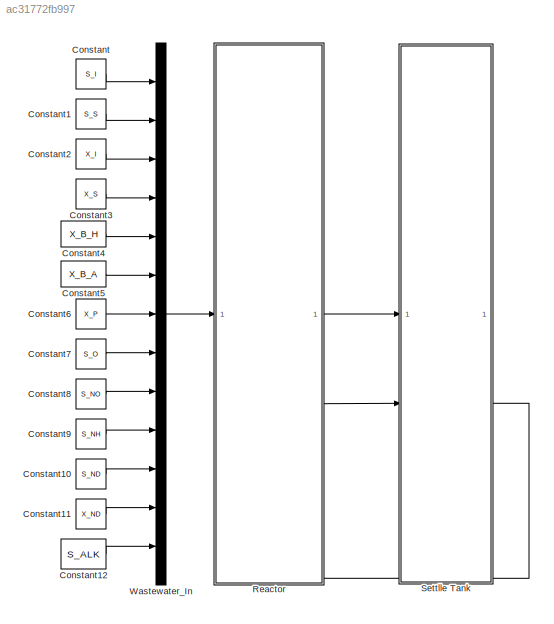
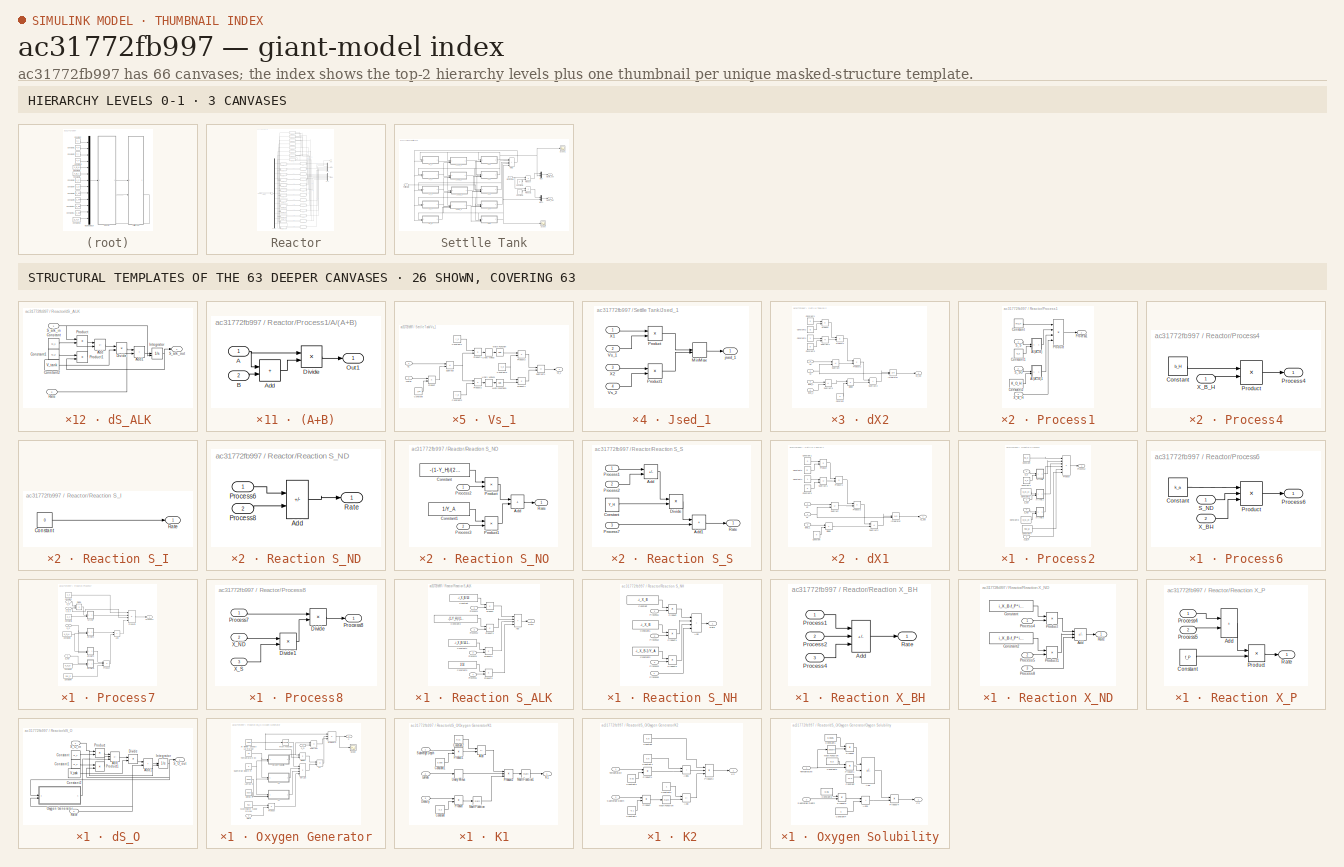
[diagram: thumbnail index - top-2 hierarchy levels (3 canvases) + 26 structural-template representatives of the remaining 63 canvases]
MODEL slx_ac31772fb997
KIND model
CONFIG AbsTol = auto
CONFIG EnableMultiTasking = off
CONFIG FixedStep = auto
CONFIG MaxStep = auto
CONFIG MinStep = auto
CONFIG RelTol = 1e-2
CONFIG SampleTimeConstraint = Unconstrained
CONFIG SolverName = VariableStepAuto
CONFIG StartTime = 0.0
CONFIG StopTime = 100
BLOCK [Constant] Constant
  Value = S_I
BLOCK [Constant] Constant1
  Value = S_S
BLOCK [Constant] Constant10
  Value = S_ND
BLOCK [Constant] Constant11
  Value = X_ND
BLOCK [Constant] Constant12
  Value = S_ALK
BLOCK [Constant] Constant2
  Value = X_I
BLOCK [Constant] Constant3
  Value = X_S
BLOCK [Constant] Constant4
  Value = X_B_H
BLOCK [Constant] Constant5
  Value = X_B_A
BLOCK [Constant] Constant6
  Value = X_P
BLOCK [Constant] Constant7
  Value = S_O
BLOCK [Constant] Constant8
  Value = S_NO
BLOCK [Constant] Constant9
  Value = S_NH
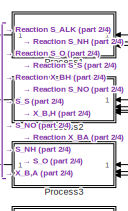
[diagram: Reactor - part 1/4, top center region]
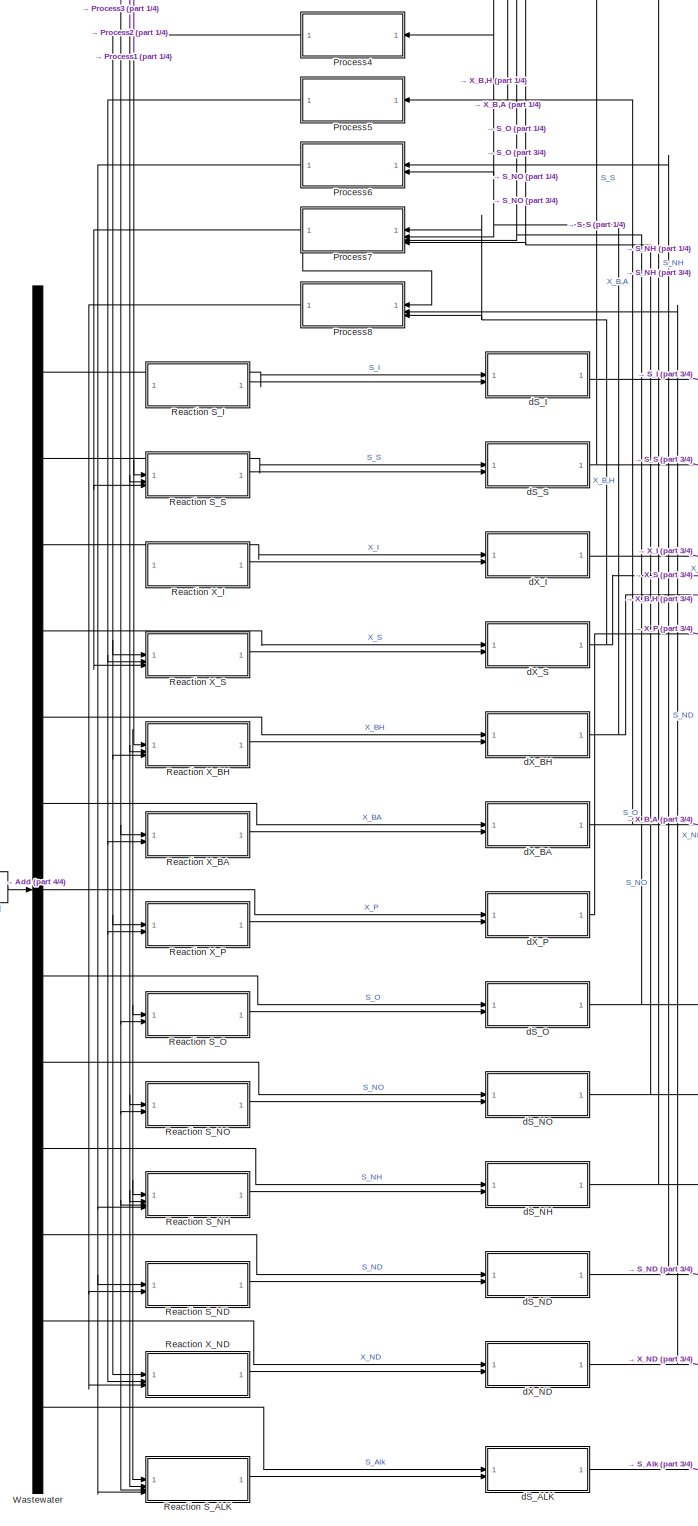
[diagram: Reactor - part 2/4, center side, full height]
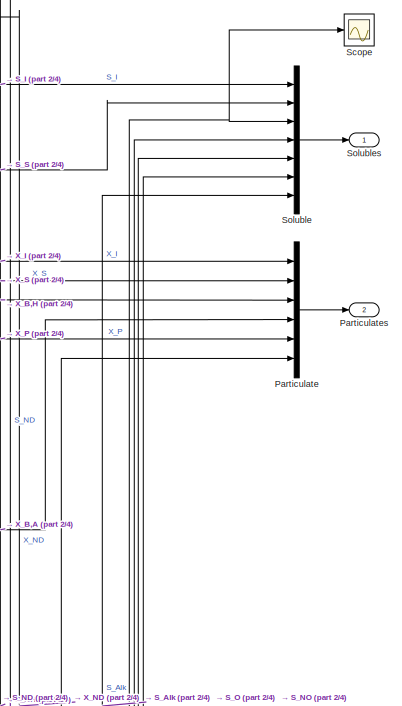
[diagram: Reactor - part 3/4, middle right region]
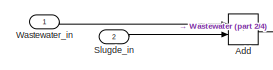
[diagram: Reactor - part 4/4, middle left region]
BLOCK [SubSystem] Reactor
  NameLocation = top
  PortSchema = {"entries":[{"content":{"sides":[{"content":{"connectorIds":["In1"]},"type":"ConnectorPlacement.EquallySpacedRectSide","uuid":"40cdbf8e-5a5e-453b-9b1f-888579fd2c6c"},{"content":{"connectorIds":["Out1","Out2"],"side":"RIGHT"},"type":"ConnectorPlacement.EquallySpacedRectSide","uuid":"2f771fc4-4039-4d32-bfbf-e1a774142763"},{"content":{"side":"TOP"},"type":"ConnectorPlacement.EquallySpacedRectSide","u...<+378ch>
BLOCK [Sum] Reactor/Add
  IconShape = rectangular
BLOCK [Mux] Reactor/Particulate
  DisplayOption = bar
  Inputs = 6
BLOCK [Outport] Reactor/Particulates
  Port = 2
BLOCK [SubSystem] Reactor/Process1
  ShowPortLabels = SignalName
BLOCK [SubSystem] Reactor/Process1/A//(A+B)
BLOCK [Inport] Reactor/Process1/A//(A+B)/A
BLOCK [Sum] Reactor/Process1/A//(A+B)/Add
  IconShape = rectangular
BLOCK [Inport] Reactor/Process1/A//(A+B)/B
  Port = 2
BLOCK [Product] Reactor/Process1/A//(A+B)/Divide
  Inputs = */
BLOCK [Outport] Reactor/Process1/A//(A+B)/Out1
BLOCK [SubSystem] Reactor/Process1/A//(A+B)1
BLOCK [Inport] Reactor/Process1/A//(A+B)1/A
BLOCK [Sum] Reactor/Process1/A//(A+B)1/Add
  IconShape = rectangular
BLOCK [Inport] Reactor/Process1/A//(A+B)1/B
  Port = 2
BLOCK [Product] Reactor/Process1/A//(A+B)1/Divide
  Inputs = */
BLOCK [Outport] Reactor/Process1/A//(A+B)1/Out1
BLOCK [Constant] Reactor/Process1/Constant
  Value = mu_H
BLOCK [Constant] Reactor/Process1/Constant1
  Value = K_S
BLOCK [Constant] Reactor/Process1/Constant2
  Value = K_O_H
BLOCK [Outport] Reactor/Process1/Process1
BLOCK [Product] Reactor/Process1/Product
  Inputs = 4
BLOCK [Inport] Reactor/Process1/S_S
BLOCK [Inport] Reactor/Process1/S_SO
  Port = 2
BLOCK [Inport] Reactor/Process1/X_B_H
  Port = 3
BLOCK [SubSystem] Reactor/Process2
BLOCK [SubSystem] Reactor/Process2/A//(A+B)
BLOCK [Inport] Reactor/Process2/A//(A+B)/A
BLOCK [Sum] Reactor/Process2/A//(A+B)/Add
  IconShape = rectangular
BLOCK [Inport] Reactor/Process2/A//(A+B)/B
  Port = 2
BLOCK [Product] Reactor/Process2/A//(A+B)/Divide
  Inputs = */
BLOCK [Outport] Reactor/Process2/A//(A+B)/Out1
BLOCK [SubSystem] Reactor/Process2/A//(A+B)1
BLOCK [Inport] Reactor/Process2/A//(A+B)1/A
BLOCK [Sum] Reactor/Process2/A//(A+B)1/Add
  IconShape = rectangular
BLOCK [Inport] Reactor/Process2/A//(A+B)1/B
  Port = 2
BLOCK [Product] Reactor/Process2/A//(A+B)1/Divide
  Inputs = */
BLOCK [Outport] Reactor/Process2/A//(A+B)1/Out1
BLOCK [SubSystem] Reactor/Process2/A//(A+B)3
BLOCK [Inport] Reactor/Process2/A//(A+B)3/A
BLOCK [Sum] Reactor/Process2/A//(A+B)3/Add
  IconShape = rectangular
BLOCK [Inport] Reactor/Process2/A//(A+B)3/B
  Port = 2
BLOCK [Product] Reactor/Process2/A//(A+B)3/Divide
  Inputs = */
BLOCK [Outport] Reactor/Process2/A//(A+B)3/Out1
BLOCK [Constant] Reactor/Process2/Constant
  Value = mu_H
BLOCK [Constant] Reactor/Process2/Constant1
  Value = K_S
BLOCK [Constant] Reactor/Process2/Constant2
  Value = K_O_H
BLOCK [Constant] Reactor/Process2/Constant3
  Value = K_N_O
BLOCK [Constant] Reactor/Process2/Constant4
  Value = nuy_g
BLOCK [Outport] Reactor/Process2/Process2
BLOCK [Product] Reactor/Process2/Product
  Inputs = 6
BLOCK [Inport] Reactor/Process2/S_NO
  Port = 4
BLOCK [Inport] Reactor/Process2/S_S
BLOCK [Inport] Reactor/Process2/S_SO
  Port = 2
BLOCK [Inport] Reactor/Process2/X_B_H
  Port = 3
BLOCK [SubSystem] Reactor/Process3
BLOCK [SubSystem] Reactor/Process3/A//(A+B)
BLOCK [Inport] Reactor/Process3/A//(A+B)/A
BLOCK [Sum] Reactor/Process3/A//(A+B)/Add
  IconShape = rectangular
BLOCK [Inport] Reactor/Process3/A//(A+B)/B
  Port = 2
BLOCK [Product] Reactor/Process3/A//(A+B)/Divide
  Inputs = */
BLOCK [Outport] Reactor/Process3/A//(A+B)/Out1
BLOCK [SubSystem] Reactor/Process3/A//(A+B)1
BLOCK [Inport] Reactor/Process3/A//(A+B)1/A
BLOCK [Sum] Reactor/Process3/A//(A+B)1/Add
  IconShape = rectangular
BLOCK [Inport] Reactor/Process3/A//(A+B)1/B
  Port = 2
BLOCK [Product] Reactor/Process3/A//(A+B)1/Divide
  Inputs = */
BLOCK [Outport] Reactor/Process3/A//(A+B)1/Out1
BLOCK [Constant] Reactor/Process3/Constant
  Value = mu_A
BLOCK [Constant] Reactor/Process3/Constant1
  Value = K_N_H
BLOCK [Constant] Reactor/Process3/Constant2
  Value = K_O_A
BLOCK [Outport] Reactor/Process3/Process3
BLOCK [Product] Reactor/Process3/Product
  Inputs = 4
BLOCK [Inport] Reactor/Process3/S_NH
BLOCK [Inport] Reactor/Process3/S_SO
  Port = 2
BLOCK [Inport] Reactor/Process3/X_B_A
  Port = 3
BLOCK [SubSystem] Reactor/Process4
BLOCK [Constant] Reactor/Process4/Constant
  Value = b_H
BLOCK [Outport] Reactor/Process4/Process4
BLOCK [Product] Reactor/Process4/Product
BLOCK [Inport] Reactor/Process4/X_B_H
BLOCK [SubSystem] Reactor/Process5
BLOCK [Constant] Reactor/Process5/Constant
  Value = b_A
BLOCK [Outport] Reactor/Process5/Process5
BLOCK [Product] Reactor/Process5/Product
BLOCK [Inport] Reactor/Process5/X_B_A
BLOCK [SubSystem] Reactor/Process6
BLOCK [Constant] Reactor/Process6/Constant
  Value = k_a
BLOCK [Outport] Reactor/Process6/Process6
BLOCK [Product] Reactor/Process6/Product
  Inputs = 3
BLOCK [Inport] Reactor/Process6/S_ND
BLOCK [Inport] Reactor/Process6/X_BH
  Port = 2
BLOCK [SubSystem] Reactor/Process7
BLOCK [SubSystem] Reactor/Process7/A//(A+B)
BLOCK [Inport] Reactor/Process7/A//(A+B)/A
BLOCK [Sum] Reactor/Process7/A//(A+B)/Add
  IconShape = rectangular
BLOCK [Inport] Reactor/Process7/A//(A+B)/B
  Port = 2
BLOCK [Product] Reactor/Process7/A//(A+B)/Divide
  Inputs = */
BLOCK [Outport] Reactor/Process7/A//(A+B)/Out1
BLOCK [SubSystem] Reactor/Process7/A//(A+B)1
BLOCK [Inport] Reactor/Process7/A//(A+B)1/A
BLOCK [Sum] Reactor/Process7/A//(A+B)1/Add
  IconShape = rectangular
BLOCK [Inport] Reactor/Process7/A//(A+B)1/B
  Port = 2
BLOCK [Product] Reactor/Process7/A//(A+B)1/Divide
  Inputs = */
BLOCK [Outport] Reactor/Process7/A//(A+B)1/Out1
BLOCK [SubSystem] Reactor/Process7/A//(A+B)2
BLOCK [Inport] Reactor/Process7/A//(A+B)2/A
BLOCK [Sum] Reactor/Process7/A//(A+B)2/Add
  IconShape = rectangular
BLOCK [Inport] Reactor/Process7/A//(A+B)2/B
  Port = 2
BLOCK [Product] Reactor/Process7/A//(A+B)2/Divide
  Inputs = */
BLOCK [Outport] Reactor/Process7/A//(A+B)2/Out1
BLOCK [SubSystem] Reactor/Process7/A//(A+B)3
BLOCK [Inport] Reactor/Process7/A//(A+B)3/A
BLOCK [Sum] Reactor/Process7/A//(A+B)3/Add
  IconShape = rectangular
BLOCK [Inport] Reactor/Process7/A//(A+B)3/B
  Port = 2
BLOCK [Product] Reactor/Process7/A//(A+B)3/Divide
  Inputs = */
BLOCK [Outport] Reactor/Process7/A//(A+B)3/Out1
BLOCK [Sum] Reactor/Process7/Add
  IconShape = rectangular
BLOCK [Constant] Reactor/Process7/Constant
  Value = k_h
BLOCK [Constant] Reactor/Process7/Constant1
  Value = K_X
BLOCK [Constant] Reactor/Process7/Constant2
  Value = K_O_H
BLOCK [Constant] Reactor/Process7/Constant3
  Value = K_N_O
BLOCK [Constant] Reactor/Process7/Constant4
  Value = nuy_h
BLOCK [Product] Reactor/Process7/Divide
  Inputs = */
BLOCK [Outport] Reactor/Process7/Process7
BLOCK [Product] Reactor/Process7/Product
  Inputs = 3
BLOCK [Product] Reactor/Process7/Product1
  Inputs = 4
BLOCK [Inport] Reactor/Process7/S_NO
  Port = 4
BLOCK [Inport] Reactor/Process7/S_O
  Port = 3
BLOCK [Inport] Reactor/Process7/X_B_H
  Port = 2
BLOCK [Inport] Reactor/Process7/X_S
BLOCK [SubSystem] Reactor/Process8
BLOCK [Product] Reactor/Process8/Divide
  Inputs = **
BLOCK [Product] Reactor/Process8/Divide1
  Inputs = */
BLOCK [Inport] Reactor/Process8/Process7
BLOCK [Outport] Reactor/Process8/Process8
BLOCK [Inport] Reactor/Process8/X_ND
  Port = 2
BLOCK [Inport] Reactor/Process8/X_S
  Port = 3
BLOCK [SubSystem] Reactor/Reaction S_ALK
BLOCK [Sum] Reactor/Reaction S_ALK/Add
  IconShape = rectangular
  Inputs = ++++
BLOCK [Constant] Reactor/Reaction S_ALK/Constant
  Value = -i_X_B/14
BLOCK [Constant] Reactor/Reaction S_ALK/Constant1
  Value = -i_X_B/14-1/(7*Y_A)
BLOCK [Constant] Reactor/Reaction S_ALK/Constant2
  Value = -(1-Y_H)/(14*2.86*Y_H)-i_X_B/14
BLOCK [Constant] Reactor/Reaction S_ALK/Constant3
  Value = 1/14
BLOCK [Inport] Reactor/Reaction S_ALK/Process1
BLOCK [Inport] Reactor/Reaction S_ALK/Process2
  Port = 2
BLOCK [Inport] Reactor/Reaction S_ALK/Process3
  Port = 3
BLOCK [Inport] Reactor/Reaction S_ALK/Process6
  Port = 4
BLOCK [Product] Reactor/Reaction S_ALK/Product
BLOCK [Product] Reactor/Reaction S_ALK/Product1
BLOCK [Product] Reactor/Reaction S_ALK/Product2
BLOCK [Product] Reactor/Reaction S_ALK/Product3
BLOCK [Outport] Reactor/Reaction S_ALK/Rate
BLOCK [SubSystem] Reactor/Reaction S_I
BLOCK [Constant] Reactor/Reaction S_I/Constant
  Value = 0
BLOCK [Outport] Reactor/Reaction S_I/Rate
BLOCK [SubSystem] Reactor/Reaction S_ND
BLOCK [Sum] Reactor/Reaction S_ND/Add
  IconShape = rectangular
  Inputs = -+
BLOCK [Inport] Reactor/Reaction S_ND/Process6
BLOCK [Inport] Reactor/Reaction S_ND/Process8
  Port = 2
BLOCK [Outport] Reactor/Reaction S_ND/Rate
BLOCK [SubSystem] Reactor/Reaction S_NH
BLOCK [Sum] Reactor/Reaction S_NH/Add
  IconShape = rectangular
  Inputs = ++++
BLOCK [Constant] Reactor/Reaction S_NH/Constant
  Value = -i_X_B
BLOCK [Constant] Reactor/Reaction S_NH/Constant1
  Value = -i_X_B
BLOCK [Constant] Reactor/Reaction S_NH/Constant2
  Value = -i_X_B-1/Y_A
BLOCK [Inport] Reactor/Reaction S_NH/Process1
BLOCK [Inport] Reactor/Reaction S_NH/Process2
  Port = 2
BLOCK [Inport] Reactor/Reaction S_NH/Process3
  Port = 3
BLOCK [Inport] Reactor/Reaction S_NH/Process6
  Port = 4
BLOCK [Product] Reactor/Reaction S_NH/Product
BLOCK [Product] Reactor/Reaction S_NH/Product1
BLOCK [Product] Reactor/Reaction S_NH/Product2
BLOCK [Outport] Reactor/Reaction S_NH/Rate
BLOCK [SubSystem] Reactor/Reaction S_NO
BLOCK [Sum] Reactor/Reaction S_NO/Add
  IconShape = rectangular
BLOCK [Constant] Reactor/Reaction S_NO/Constant
  Value = -(1-Y_H)/(2.86*Y_H)
BLOCK [Constant] Reactor/Reaction S_NO/Constant1
  Value = 1/Y_A
BLOCK [Inport] Reactor/Reaction S_NO/Process2
BLOCK [Inport] Reactor/Reaction S_NO/Process3
  Port = 2
BLOCK [Product] Reactor/Reaction S_NO/Product
BLOCK [Product] Reactor/Reaction S_NO/Product1
BLOCK [Outport] Reactor/Reaction S_NO/Rate
BLOCK [SubSystem] Reactor/Reaction S_O
BLOCK [Sum] Reactor/Reaction S_O/Add
  IconShape = rectangular
BLOCK [Constant] Reactor/Reaction S_O/Constant
  Value = -(1-Y_H)/Y_H
BLOCK [Constant] Reactor/Reaction S_O/Constant1
  Value = -(4.57-Y_A)/Y_A
BLOCK [Inport] Reactor/Reaction S_O/Process1
BLOCK [Inport] Reactor/Reaction S_O/Process3
  Port = 2
BLOCK [Product] Reactor/Reaction S_O/Product
BLOCK [Product] Reactor/Reaction S_O/Product1
BLOCK [Outport] Reactor/Reaction S_O/Rate
BLOCK [SubSystem] Reactor/Reaction S_S
BLOCK [Sum] Reactor/Reaction S_S/Add
  IconShape = rectangular
  Inputs = --
BLOCK [Sum] Reactor/Reaction S_S/Add1
  IconShape = rectangular
BLOCK [Constant] Reactor/Reaction S_S/Constant
  Value = Y_H
BLOCK [Product] Reactor/Reaction S_S/Divide
  Inputs = */
BLOCK [Inport] Reactor/Reaction S_S/Process1
BLOCK [Inport] Reactor/Reaction S_S/Process2
  Port = 2
BLOCK [Inport] Reactor/Reaction S_S/Process7
  Port = 3
BLOCK [Outport] Reactor/Reaction S_S/Rate
BLOCK [SubSystem] Reactor/Reaction X_BA
BLOCK [Sum] Reactor/Reaction X_BA/Add
  IconShape = rectangular
  Inputs = +-
BLOCK [Inport] Reactor/Reaction X_BA/Process3
BLOCK [Inport] Reactor/Reaction X_BA/Process5
  Port = 2
BLOCK [Outport] Reactor/Reaction X_BA/Rate
BLOCK [SubSystem] Reactor/Reaction X_BH
BLOCK [Sum] Reactor/Reaction X_BH/Add
  IconShape = rectangular
  Inputs = ++-
BLOCK [Inport] Reactor/Reaction X_BH/Process1
BLOCK [Inport] Reactor/Reaction X_BH/Process2
  Port = 2
BLOCK [Inport] Reactor/Reaction X_BH/Process4
  Port = 3
BLOCK [Outport] Reactor/Reaction X_BH/Rate
BLOCK [SubSystem] Reactor/Reaction X_I
BLOCK [Constant] Reactor/Reaction X_I/Constant
  Value = 0
BLOCK [Outport] Reactor/Reaction X_I/Rate
BLOCK [SubSystem] Reactor/Reaction X_ND
BLOCK [Sum] Reactor/Reaction X_ND/Add
  IconShape = rectangular
  Inputs = ++-
BLOCK [Constant] Reactor/Reaction X_ND/Constant
  Value = i_X_B-f_P*i_X_P
BLOCK [Constant] Reactor/Reaction X_ND/Constant2
  Value = i_X_B-f_P*i_X_P
BLOCK [Inport] Reactor/Reaction X_ND/Process4
BLOCK [Inport] Reactor/Reaction X_ND/Process5
  Port = 2
BLOCK [Inport] Reactor/Reaction X_ND/Process8
  Port = 3
BLOCK [Product] Reactor/Reaction X_ND/Product
BLOCK [Product] Reactor/Reaction X_ND/Product1
BLOCK [Outport] Reactor/Reaction X_ND/Rate
BLOCK [SubSystem] Reactor/Reaction X_P
BLOCK [Sum] Reactor/Reaction X_P/Add
  IconShape = rectangular
BLOCK [Constant] Reactor/Reaction X_P/Constant
  Value = f_P
BLOCK [Inport] Reactor/Reaction X_P/Process4
BLOCK [Inport] Reactor/Reaction X_P/Process5
  Port = 2
BLOCK [Product] Reactor/Reaction X_P/Product
BLOCK [Outport] Reactor/Reaction X_P/Rate
BLOCK [SubSystem] Reactor/Reaction X_S
BLOCK [Sum] Reactor/Reaction X_S/Add
  IconShape = rectangular
BLOCK [Constant] Reactor/Reaction X_S/Constant
  Value = 1-f_P
BLOCK [Inport] Reactor/Reaction X_S/Process4
BLOCK [Inport] Reactor/Reaction X_S/Process5
  Port = 2
BLOCK [Inport] Reactor/Reaction X_S/Process7
  Port = 3
BLOCK [Product] Reactor/Reaction X_S/Product
BLOCK [Outport] Reactor/Reaction X_S/Rate
BLOCK [Sum] Reactor/Reaction X_S/Subtract
  IconShape = rectangular
  Inputs = +-
BLOCK [Scope] Reactor/Scope
  Floating = off
  NumInputPorts = 1
  ScopeSpecificationString = Simulink.scopes.TimeScopeBlockCfg('CurrentConfiguration', extmgr.ConfigurationSet(extmgr.Configuration('Core','General UI',true),extmgr.Configuration('Core','Source UI',true),extmgr.Configuration('Sources','WiredSimulink',true),extmgr.Configuration('Visuals','Time Domain',true,'SerializedDisplays',{struct('MinYLimReal','-0.00235','MaxYLimReal','0.0268','YLabelReal','','MinYLimMag','0.00000','MaxYL...<+1472ch>
BLOCK [Inport] Reactor/Slugde_in
  Port = 2
BLOCK [Mux] Reactor/Soluble
  DisplayOption = bar
  Inputs = 7
BLOCK [Outport] Reactor/Solubles
BLOCK [Demux] Reactor/Wastewater
  Outputs = 13
BLOCK [Inport] Reactor/Wastewater_in
BLOCK [SubSystem] Reactor/dS_ALK
BLOCK [Sum] Reactor/dS_ALK/Add
  IconShape = rectangular
  Inputs = +-
BLOCK [Sum] Reactor/dS_ALK/Add1
  IconShape = rectangular
BLOCK [Constant] Reactor/dS_ALK/Constant
  Value = Q_1
BLOCK [Constant] Reactor/dS_ALK/Constant1
  Value = Q_2
BLOCK [Constant] Reactor/dS_ALK/Constant2
  Value = V_tank
BLOCK [Product] Reactor/dS_ALK/Divide
  Inputs = */
BLOCK [Integrator] Reactor/dS_ALK/Integrator
  InitialConditionSource = external
BLOCK [Product] Reactor/dS_ALK/Product
BLOCK [Product] Reactor/dS_ALK/Product1
BLOCK [Inport] Reactor/dS_ALK/Rate
  Port = 2
BLOCK [Inport] Reactor/dS_ALK/S_alk_in
BLOCK [Outport] Reactor/dS_ALK/S_alk_out
BLOCK [SubSystem] Reactor/dS_I
BLOCK [Sum] Reactor/dS_I/Add
  IconShape = rectangular
  Inputs = +-
BLOCK [Sum] Reactor/dS_I/Add1
  IconShape = rectangular
BLOCK [Constant] Reactor/dS_I/Constant
  Value = Q_1
BLOCK [Constant] Reactor/dS_I/Constant1
  Value = Q_2
BLOCK [Constant] Reactor/dS_I/Constant2
  Value = V_tank
BLOCK [Product] Reactor/dS_I/Divide
  Inputs = */
BLOCK [Integrator] Reactor/dS_I/Integrator
  InitialConditionSource = external
BLOCK [Product] Reactor/dS_I/Product
BLOCK [Product] Reactor/dS_I/Product1
BLOCK [Inport] Reactor/dS_I/Rate
  Port = 2
BLOCK [Inport] Reactor/dS_I/S_I_in
BLOCK [Outport] Reactor/dS_I/S_I_out
BLOCK [SubSystem] Reactor/dS_ND
BLOCK [Sum] Reactor/dS_ND/Add
  IconShape = rectangular
  Inputs = +-
BLOCK [Sum] Reactor/dS_ND/Add1
  IconShape = rectangular
BLOCK [Constant] Reactor/dS_ND/Constant
  Value = Q_1
BLOCK [Constant] Reactor/dS_ND/Constant1
  Value = Q_2
BLOCK [Constant] Reactor/dS_ND/Constant2
  Value = V_tank
BLOCK [Product] Reactor/dS_ND/Divide
  Inputs = */
BLOCK [Integrator] Reactor/dS_ND/Integrator
  InitialConditionSource = external
BLOCK [Product] Reactor/dS_ND/Product
BLOCK [Product] Reactor/dS_ND/Product1
BLOCK [Inport] Reactor/dS_ND/Rate
  Port = 2
BLOCK [Inport] Reactor/dS_ND/S_ND_in
BLOCK [Outport] Reactor/dS_ND/S_ND_out
BLOCK [SubSystem] Reactor/dS_NH
BLOCK [Sum] Reactor/dS_NH/Add
  IconShape = rectangular
  Inputs = +-
BLOCK [Sum] Reactor/dS_NH/Add1
  IconShape = rectangular
BLOCK [Constant] Reactor/dS_NH/Constant
  Value = Q_1
BLOCK [Constant] Reactor/dS_NH/Constant1
  Value = Q_2
BLOCK [Constant] Reactor/dS_NH/Constant2
  Value = V_tank
BLOCK [Product] Reactor/dS_NH/Divide
  Inputs = */
BLOCK [Integrator] Reactor/dS_NH/Integrator
  InitialConditionSource = external
BLOCK [Product] Reactor/dS_NH/Product
BLOCK [Product] Reactor/dS_NH/Product1
BLOCK [Inport] Reactor/dS_NH/Rate
  Port = 2
BLOCK [Inport] Reactor/dS_NH/S_NH_in
BLOCK [Outport] Reactor/dS_NH/S_NH_out
BLOCK [SubSystem] Reactor/dS_NO
BLOCK [Sum] Reactor/dS_NO/Add
  IconShape = rectangular
  Inputs = +-
BLOCK [Sum] Reactor/dS_NO/Add1
  IconShape = rectangular
BLOCK [Constant] Reactor/dS_NO/Constant
  Value = Q_1
BLOCK [Constant] Reactor/dS_NO/Constant1
  Value = Q_2
BLOCK [Constant] Reactor/dS_NO/Constant2
  Value = V_tank
BLOCK [Product] Reactor/dS_NO/Divide
  Inputs = */
BLOCK [Integrator] Reactor/dS_NO/Integrator
  InitialConditionSource = external
BLOCK [Product] Reactor/dS_NO/Product
BLOCK [Product] Reactor/dS_NO/Product1
BLOCK [Inport] Reactor/dS_NO/Rate
  Port = 2
BLOCK [Inport] Reactor/dS_NO/S_NO_in
BLOCK [Outport] Reactor/dS_NO/S_NO_out
BLOCK [SubSystem] Reactor/dS_O
BLOCK [Sum] Reactor/dS_O/Add
  IconShape = rectangular
  Inputs = +-+
BLOCK [Sum] Reactor/dS_O/Add1
  IconShape = rectangular
BLOCK [Constant] Reactor/dS_O/Constant
  Value = Q_1
BLOCK [Constant] Reactor/dS_O/Constant1
  Value = Q_2
BLOCK [Constant] Reactor/dS_O/Constant2
  Value = V_tank
BLOCK [Product] Reactor/dS_O/Divide
  Inputs = */
BLOCK [Integrator] Reactor/dS_O/Integrator
  InitialConditionSource = external
BLOCK [SubSystem] Reactor/dS_O/Oxygen Generator
  NameLocation = top
BLOCK [Constant] Reactor/dS_O/Oxygen Generator/Air Blower Capacity Lg m3//day
  Value = 1000
BLOCK [Outport] Reactor/dS_O/Oxygen Generator/C
BLOCK [Constant] Reactor/dS_O/Oxygen Generator/Density
  Value = 0.026
BLOCK [Product] Reactor/dS_O/Oxygen Generator/Divide1
  Inputs = */
BLOCK [SubSystem] Reactor/dS_O/Oxygen Generator/K1
BLOCK [Sum] Reactor/dS_O/Oxygen Generator/K1/Add
  IconShape = rectangular
  Inputs = +-
BLOCK [Constant] Reactor/dS_O/Oxygen Generator/K1/Constant
  Value = -2.2
BLOCK [Constant] Reactor/dS_O/Oxygen Generator/K1/Constant1
  Value = 0.008
BLOCK [Constant] Reactor/dS_O/Oxygen Generator/K1/Constant2
  Value = 0.11
BLOCK [Inport] Reactor/dS_O/Oxygen Generator/K1/Density
  Port = 3
BLOCK [Outport] Reactor/dS_O/Oxygen Generator/K1/K1
BLOCK [Inport] Reactor/dS_O/Oxygen Generator/K1/Lamda
  Port = 2
BLOCK [Math] Reactor/dS_O/Oxygen Generator/K1/Math Function
BLOCK [Math] Reactor/dS_O/Oxygen Generator/K1/Math Function1
BLOCK [Product] Reactor/dS_O/Oxygen Generator/K1/Product
BLOCK [Product] Reactor/dS_O/Oxygen Generator/K1/Product1
BLOCK [Product] Reactor/dS_O/Oxygen Generator/K1/Product2
  Inputs = 3
BLOCK [Inport] Reactor/dS_O/Oxygen Generator/K1/Submerge Depth
BLOCK [UnaryMinus] Reactor/dS_O/Oxygen Generator/K1/Unary Minus
BLOCK [SubSystem] Reactor/dS_O/Oxygen Generator/K2
BLOCK [Sum] Reactor/dS_O/Oxygen Generator/K2/Add
  IconShape = rectangular
  Inputs = +-
BLOCK [Sum] Reactor/dS_O/Oxygen Generator/K2/Add1
  IconShape = rectangular
BLOCK [Constant] Reactor/dS_O/Oxygen Generator/K2/Constant
  Value = 5.8
BLOCK [Constant] Reactor/dS_O/Oxygen Generator/K2/Constant1
  Value = -0.1
BLOCK [Constant] Reactor/dS_O/Oxygen Generator/K2/Constant2
BLOCK [Constant] Reactor/dS_O/Oxygen Generator/K2/Constant3
  Value = 0.02
BLOCK [Constant] Reactor/dS_O/Oxygen Generator/K2/Constant4
  Value = 0.6
BLOCK [Outport] Reactor/dS_O/Oxygen Generator/K2/K2
BLOCK [Math] Reactor/dS_O/Oxygen Generator/K2/Math Function
BLOCK [Product] Reactor/dS_O/Oxygen Generator/K2/Product
BLOCK [Product] Reactor/dS_O/Oxygen Generator/K2/Product1
BLOCK [Product] Reactor/dS_O/Oxygen Generator/K2/Product2
  Inputs = 3
BLOCK [Inport] Reactor/dS_O/Oxygen Generator/K2/Submerge Depth
  Port = 2
BLOCK [Inport] Reactor/dS_O/Oxygen Generator/K2/Temperature
BLOCK [Constant] Reactor/dS_O/Oxygen Generator/Lamda d
  Value = 0.025
BLOCK [Math] Reactor/dS_O/Oxygen Generator/Math Function
  Operator = square
BLOCK [SubSystem] Reactor/dS_O/Oxygen Generator/Oxygen Solubility
BLOCK [Sum] Reactor/dS_O/Oxygen Generator/Oxygen Solubility/Add
  IconShape = rectangular
  Inputs = +-+
BLOCK [Sum] Reactor/dS_O/Oxygen Generator/Oxygen Solubility/Add1
  IconShape = rectangular
BLOCK [Outport] Reactor/dS_O/Oxygen Generator/Oxygen Solubility/CS
BLOCK [Constant] Reactor/dS_O/Oxygen Generator/Oxygen Solubility/Constant
  Value = 14.2
BLOCK [Constant] Reactor/dS_O/Oxygen Generator/Oxygen Solubility/Constant1
  Value = 0.0025
BLOCK [Constant] Reactor/dS_O/Oxygen Generator/Oxygen Solubility/Constant2
  Value = 0.3
BLOCK [Constant] Reactor/dS_O/Oxygen Generator/Oxygen Solubility/Constant3
  Value = 0.05
BLOCK [Constant] Reactor/dS_O/Oxygen Generator/Oxygen Solubility/Constant4
BLOCK [Math] Reactor/dS_O/Oxygen Generator/Oxygen Solubility/Math Function
  Operator = square
BLOCK [Product] Reactor/dS_O/Oxygen Generator/Oxygen Solubility/Product
BLOCK [Product] Reactor/dS_O/Oxygen Generator/Oxygen Solubility/Product1
BLOCK [Product] Reactor/dS_O/Oxygen Generator/Oxygen Solubility/Product2
BLOCK [Product] Reactor/dS_O/Oxygen Generator/Oxygen Solubility/Product4
BLOCK [Inport] Reactor/dS_O/Oxygen Generator/Oxygen Solubility/Submerge Depth
  Port = 2
BLOCK [Inport] Reactor/dS_O/Oxygen Generator/Oxygen Solubility/Temperature
BLOCK [Product] Reactor/dS_O/Oxygen Generator/Product
BLOCK [Product] Reactor/dS_O/Oxygen Generator/Product4
  Inputs = 3
BLOCK [Inport] Reactor/dS_O/Oxygen Generator/Rate
  Port = 2
BLOCK [Inport] Reactor/dS_O/Oxygen Generator/S_O
BLOCK [Scope] Reactor/dS_O/Oxygen Generator/Scope
  Floating = off
  NumInputPorts = 1
  ScopeSpecificationString = Simulink.scopes.TimeScopeBlockCfg('CurrentConfiguration', extmgr.ConfigurationSet(extmgr.Configuration('Core','General UI',true),extmgr.Configuration('Core','Source UI',true),extmgr.Configuration('Sources','WiredSimulink',true,'DataLoggingVariableName','ScopeData1'),extmgr.Configuration('Visuals','Time Domain',true,'SerializedDisplays',{struct('MinYLimReal','172.88246','MaxYLimReal','225.01923','Y...<+1513ch>
BLOCK [Constant] Reactor/dS_O/Oxygen Generator/Submerge Depth m
  Value = 6
BLOCK [Sum] Reactor/dS_O/Oxygen Generator/Subtract
  IconShape = rectangular
  Inputs = +-
BLOCK [Constant] Reactor/dS_O/Oxygen Generator/Temperature oC
  Value = 15
BLOCK [Constant] Reactor/dS_O/Oxygen Generator/Wastewater supply m3//day
  Value = Q_1
BLOCK [Sum] Reactor/dS_O/Oxygen Generator/kA
  IconShape = rectangular
  Inputs = +-
BLOCK [Product] Reactor/dS_O/Oxygen Generator/q0//Lg2
  Inputs = //**
BLOCK [Product] Reactor/dS_O/Product
BLOCK [Product] Reactor/dS_O/Product1
BLOCK [Inport] Reactor/dS_O/Rate
  Port = 2
BLOCK [Inport] Reactor/dS_O/S_O_in
BLOCK [Outport] Reactor/dS_O/S_O_out
BLOCK [SubSystem] Reactor/dS_S
BLOCK [Sum] Reactor/dS_S/Add
  IconShape = rectangular
  Inputs = +-
BLOCK [Sum] Reactor/dS_S/Add1
  IconShape = rectangular
BLOCK [Constant] Reactor/dS_S/Constant
  Value = Q_1
BLOCK [Constant] Reactor/dS_S/Constant1
  Value = Q_2
BLOCK [Constant] Reactor/dS_S/Constant2
  Value = V_tank
BLOCK [Product] Reactor/dS_S/Divide
  Inputs = */
BLOCK [Integrator] Reactor/dS_S/Integrator
  InitialConditionSource = external
BLOCK [Product] Reactor/dS_S/Product
BLOCK [Product] Reactor/dS_S/Product1
BLOCK [Inport] Reactor/dS_S/Rate
  Port = 2
BLOCK [Inport] Reactor/dS_S/S_S_in
BLOCK [Outport] Reactor/dS_S/S_S_out
BLOCK [SubSystem] Reactor/dX_BA
BLOCK [Sum] Reactor/dX_BA/Add
  IconShape = rectangular
  Inputs = +-
BLOCK [Sum] Reactor/dX_BA/Add1
  IconShape = rectangular
BLOCK [Constant] Reactor/dX_BA/Constant
  Value = Q_1
BLOCK [Constant] Reactor/dX_BA/Constant1
  Value = Q_2
BLOCK [Constant] Reactor/dX_BA/Constant2
  Value = V_tank
BLOCK [Product] Reactor/dX_BA/Divide
  Inputs = */
BLOCK [Integrator] Reactor/dX_BA/Integrator
  InitialConditionSource = external
BLOCK [Product] Reactor/dX_BA/Product
BLOCK [Product] Reactor/dX_BA/Product1
BLOCK [Inport] Reactor/dX_BA/Rate
  Port = 2
BLOCK [Inport] Reactor/dX_BA/X_BA_in
BLOCK [Outport] Reactor/dX_BA/X_BA_out
BLOCK [SubSystem] Reactor/dX_BH
BLOCK [Sum] Reactor/dX_BH/Add
  IconShape = rectangular
  Inputs = +-
BLOCK [Sum] Reactor/dX_BH/Add1
  IconShape = rectangular
BLOCK [Constant] Reactor/dX_BH/Constant
  Value = Q_1
BLOCK [Constant] Reactor/dX_BH/Constant1
  Value = Q_2
BLOCK [Constant] Reactor/dX_BH/Constant2
  Value = V_tank
BLOCK [Product] Reactor/dX_BH/Divide
  Inputs = */
BLOCK [Integrator] Reactor/dX_BH/Integrator
  InitialConditionSource = external
BLOCK [Product] Reactor/dX_BH/Product
BLOCK [Product] Reactor/dX_BH/Product1
BLOCK [Inport] Reactor/dX_BH/Rate
  Port = 2
BLOCK [Inport] Reactor/dX_BH/X_BH_in
BLOCK [Outport] Reactor/dX_BH/X_BH_out
BLOCK [SubSystem] Reactor/dX_I
BLOCK [Sum] Reactor/dX_I/Add
  IconShape = rectangular
  Inputs = +-
BLOCK [Sum] Reactor/dX_I/Add1
  IconShape = rectangular
BLOCK [Constant] Reactor/dX_I/Constant
  Value = Q_1
BLOCK [Constant] Reactor/dX_I/Constant1
  Value = Q_2
BLOCK [Constant] Reactor/dX_I/Constant2
  Value = V_tank
BLOCK [Product] Reactor/dX_I/Divide
  Inputs = */
BLOCK [Integrator] Reactor/dX_I/Integrator
  InitialConditionSource = external
BLOCK [Product] Reactor/dX_I/Product
BLOCK [Product] Reactor/dX_I/Product1
BLOCK [Inport] Reactor/dX_I/Rate
  Port = 2
BLOCK [Inport] Reactor/dX_I/X_I_in
BLOCK [Outport] Reactor/dX_I/X_I_out
BLOCK [SubSystem] Reactor/dX_ND
BLOCK [Sum] Reactor/dX_ND/Add
  IconShape = rectangular
  Inputs = +-
BLOCK [Sum] Reactor/dX_ND/Add1
  IconShape = rectangular
BLOCK [Constant] Reactor/dX_ND/Constant
  Value = Q_1
BLOCK [Constant] Reactor/dX_ND/Constant1
  Value = Q_2
BLOCK [Constant] Reactor/dX_ND/Constant2
  Value = V_tank
BLOCK [Product] Reactor/dX_ND/Divide
  Inputs = */
BLOCK [Integrator] Reactor/dX_ND/Integrator
  InitialConditionSource = external
BLOCK [Product] Reactor/dX_ND/Product
BLOCK [Product] Reactor/dX_ND/Product1
BLOCK [Inport] Reactor/dX_ND/Rate
  Port = 2
BLOCK [Outport] Reactor/dX_ND/X_ND
BLOCK [Inport] Reactor/dX_ND/X_ND_in
BLOCK [SubSystem] Reactor/dX_P
BLOCK [Sum] Reactor/dX_P/Add
  IconShape = rectangular
  Inputs = +-
BLOCK [Sum] Reactor/dX_P/Add1
  IconShape = rectangular
BLOCK [Constant] Reactor/dX_P/Constant
  Value = Q_1
BLOCK [Constant] Reactor/dX_P/Constant1
  Value = Q_2
BLOCK [Constant] Reactor/dX_P/Constant2
  Value = V_tank
BLOCK [Product] Reactor/dX_P/Divide
  Inputs = */
BLOCK [Integrator] Reactor/dX_P/Integrator
  InitialConditionSource = external
BLOCK [Product] Reactor/dX_P/Product
BLOCK [Product] Reactor/dX_P/Product1
BLOCK [Inport] Reactor/dX_P/Rate
  Port = 2
BLOCK [Inport] Reactor/dX_P/X_P_in
BLOCK [Outport] Reactor/dX_P/X_P_out
BLOCK [SubSystem] Reactor/dX_S
BLOCK [Sum] Reactor/dX_S/Add
  IconShape = rectangular
  Inputs = +-
BLOCK [Sum] Reactor/dX_S/Add1
  IconShape = rectangular
  Inputs = +-
BLOCK [Constant] Reactor/dX_S/Constant
  Value = Q_1
BLOCK [Constant] Reactor/dX_S/Constant1
  Value = Q_2
BLOCK [Constant] Reactor/dX_S/Constant2
  Value = V_tank
BLOCK [Product] Reactor/dX_S/Divide
  Inputs = */
BLOCK [Integrator] Reactor/dX_S/Integrator
  InitialConditionSource = external
BLOCK [Product] Reactor/dX_S/Product
BLOCK [Product] Reactor/dX_S/Product1
BLOCK [Inport] Reactor/dX_S/Rate
  Port = 2
BLOCK [Inport] Reactor/dX_S/X_S_in
BLOCK [Outport] Reactor/dX_S/X_S_out
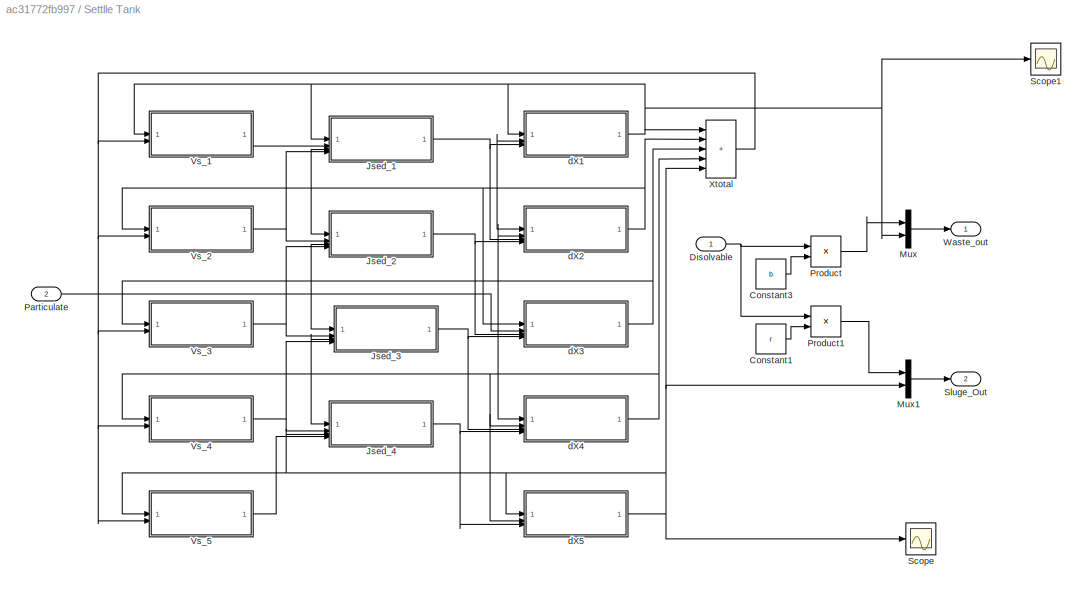
BLOCK [SubSystem] Settlle Tank
BLOCK [Constant] Settlle Tank/Constant1
  Value = r
BLOCK [Constant] Settlle Tank/Constant3
  Value = b
BLOCK [Inport] Settlle Tank/Disolvable
BLOCK [SubSystem] Settlle Tank/Jsed_1
BLOCK [MinMax] Settlle Tank/Jsed_1/MinMax
  Inputs = 2
BLOCK [Product] Settlle Tank/Jsed_1/Product
BLOCK [Product] Settlle Tank/Jsed_1/Product1
BLOCK [Inport] Settlle Tank/Jsed_1/Vs_1
  Port = 2
BLOCK [Inport] Settlle Tank/Jsed_1/Vs_2
  Port = 4
BLOCK [Inport] Settlle Tank/Jsed_1/X1
BLOCK [Inport] Settlle Tank/Jsed_1/X2
  Port = 3
BLOCK [Outport] Settlle Tank/Jsed_1/jsed_1
BLOCK [SubSystem] Settlle Tank/Jsed_2
BLOCK [MinMax] Settlle Tank/Jsed_2/MinMax
  Inputs = 2
BLOCK [Product] Settlle Tank/Jsed_2/Product
BLOCK [Product] Settlle Tank/Jsed_2/Product1
BLOCK [Inport] Settlle Tank/Jsed_2/Vs_2
  Port = 2
BLOCK [Inport] Settlle Tank/Jsed_2/Vs_3
  Port = 4
BLOCK [Inport] Settlle Tank/Jsed_2/X2
BLOCK [Inport] Settlle Tank/Jsed_2/X3
  Port = 3
BLOCK [Outport] Settlle Tank/Jsed_2/jsed_2
BLOCK [SubSystem] Settlle Tank/Jsed_3
BLOCK [MinMax] Settlle Tank/Jsed_3/MinMax
  Inputs = 2
BLOCK [Product] Settlle Tank/Jsed_3/Product
BLOCK [Product] Settlle Tank/Jsed_3/Product1
BLOCK [Inport] Settlle Tank/Jsed_3/Vs_3
  Port = 2
BLOCK [Inport] Settlle Tank/Jsed_3/Vs_4
  Port = 4
BLOCK [Inport] Settlle Tank/Jsed_3/X3
BLOCK [Inport] Settlle Tank/Jsed_3/X4
  Port = 3
BLOCK [Outport] Settlle Tank/Jsed_3/jsed_3
BLOCK [SubSystem] Settlle Tank/Jsed_4
BLOCK [MinMax] Settlle Tank/Jsed_4/MinMax
  Inputs = 2
BLOCK [Product] Settlle Tank/Jsed_4/Product
BLOCK [Product] Settlle Tank/Jsed_4/Product1
BLOCK [Inport] Settlle Tank/Jsed_4/Vs_4
  Port = 2
BLOCK [Inport] Settlle Tank/Jsed_4/Vs_5
  Port = 4
BLOCK [Inport] Settlle Tank/Jsed_4/X4
BLOCK [Inport] Settlle Tank/Jsed_4/X5
  Port = 3
BLOCK [Outport] Settlle Tank/Jsed_4/jsed_4
BLOCK [Mux] Settlle Tank/Mux
  DisplayOption = bar
  Inputs = 2
BLOCK [Mux] Settlle Tank/Mux1
  DisplayOption = bar
  Inputs = 2
BLOCK [Inport] Settlle Tank/Particulate
  Port = 2
BLOCK [Product] Settlle Tank/Product
BLOCK [Product] Settlle Tank/Product1
BLOCK [Scope] Settlle Tank/Scope
  Floating = off
  NumInputPorts = 1
  ScopeSpecificationString = Simulink.scopes.TimeScopeBlockCfg('CurrentConfiguration', extmgr.ConfigurationSet(extmgr.Configuration('Core','General UI',true),extmgr.Configuration('Core','Source UI',true),extmgr.Configuration('Sources','WiredSimulink',true,'DataLoggingVariableName','ScopeData2'),extmgr.Configuration('Visuals','Time Domain',true,'SerializedDisplays',{struct('MinYLimReal','-30.95182','MaxYLimReal','278.56637','Y...<+1544ch>
BLOCK [Scope] Settlle Tank/Scope1
  Floating = off
  NumInputPorts = 1
  ScopeSpecificationString = Simulink.scopes.TimeScopeBlockCfg('CurrentConfiguration', extmgr.ConfigurationSet(extmgr.Configuration('Core','General UI',true),extmgr.Configuration('Core','Source UI',true),extmgr.Configuration('Sources','WiredSimulink',true,'DataLoggingVariableName','ScopeData3'),extmgr.Configuration('Visuals','Time Domain',true,'SerializedDisplays',{struct('MinYLimReal','-0.41107','MaxYLimReal','3.69961','YLab...<+1534ch>
BLOCK [Outport] Settlle Tank/Sluge_Out
  Port = 2
BLOCK [SubSystem] Settlle Tank/Vs_1
BLOCK [Constant] Settlle Tank/Vs_1/Constant
  Value = f_ns
BLOCK [Constant] Settlle Tank/Vs_1/Constant1
  Value = r_h
BLOCK [Constant] Settlle Tank/Vs_1/Constant2
  Value = r_p
  VectorParams1D = off
BLOCK [Constant] Settlle Tank/Vs_1/Constant3
  Value = v_0
BLOCK [Math] Settlle Tank/Vs_1/Math Function
BLOCK [Math] Settlle Tank/Vs_1/Math Function1
BLOCK [Product] Settlle Tank/Vs_1/Product
BLOCK [Product] Settlle Tank/Vs_1/Product1
BLOCK [Product] Settlle Tank/Vs_1/Product2
BLOCK [Product] Settlle Tank/Vs_1/Product3
BLOCK [Product] Settlle Tank/Vs_1/Product4
BLOCK [Sum] Settlle Tank/Vs_1/Subtract
  IconShape = rectangular
  Inputs = +-
BLOCK [Sum] Settlle Tank/Vs_1/Subtract1
  IconShape = rectangular
  Inputs = +-
BLOCK [UnaryMinus] Settlle Tank/Vs_1/Unary Minus
BLOCK [UnaryMinus] Settlle Tank/Vs_1/Unary Minus1
BLOCK [Outport] Settlle Tank/Vs_1/Vs_1
BLOCK [Inport] Settlle Tank/Vs_1/X1
BLOCK [Inport] Settlle Tank/Vs_1/xTotal
  Port = 2
BLOCK [SubSystem] Settlle Tank/Vs_2
BLOCK [Constant] Settlle Tank/Vs_2/Constant
  Value = f_ns
BLOCK [Constant] Settlle Tank/Vs_2/Constant1
  Value = r_h
BLOCK [Constant] Settlle Tank/Vs_2/Constant2
  Value = r_p
  VectorParams1D = off
BLOCK [Constant] Settlle Tank/Vs_2/Constant3
  Value = v_0
BLOCK [Math] Settlle Tank/Vs_2/Math Function
BLOCK [Math] Settlle Tank/Vs_2/Math Function1
BLOCK [Product] Settlle Tank/Vs_2/Product
BLOCK [Product] Settlle Tank/Vs_2/Product1
BLOCK [Product] Settlle Tank/Vs_2/Product2
BLOCK [Product] Settlle Tank/Vs_2/Product3
BLOCK [Product] Settlle Tank/Vs_2/Product4
BLOCK [Sum] Settlle Tank/Vs_2/Subtract
  IconShape = rectangular
  Inputs = +-
BLOCK [Sum] Settlle Tank/Vs_2/Subtract1
  IconShape = rectangular
  Inputs = +-
BLOCK [UnaryMinus] Settlle Tank/Vs_2/Unary Minus
BLOCK [UnaryMinus] Settlle Tank/Vs_2/Unary Minus1
BLOCK [Outport] Settlle Tank/Vs_2/Vs_2
BLOCK [Inport] Settlle Tank/Vs_2/X2
BLOCK [Inport] Settlle Tank/Vs_2/xTotal
  Port = 2
BLOCK [SubSystem] Settlle Tank/Vs_3
BLOCK [Constant] Settlle Tank/Vs_3/Constant
  Value = f_ns
BLOCK [Constant] Settlle Tank/Vs_3/Constant1
  Value = r_h
BLOCK [Constant] Settlle Tank/Vs_3/Constant2
  Value = r_p
  VectorParams1D = off
BLOCK [Constant] Settlle Tank/Vs_3/Constant3
  Value = v_0
BLOCK [Math] Settlle Tank/Vs_3/Math Function
BLOCK [Math] Settlle Tank/Vs_3/Math Function1
BLOCK [Product] Settlle Tank/Vs_3/Product
BLOCK [Product] Settlle Tank/Vs_3/Product1
BLOCK [Product] Settlle Tank/Vs_3/Product2
BLOCK [Product] Settlle Tank/Vs_3/Product3
BLOCK [Product] Settlle Tank/Vs_3/Product4
BLOCK [Sum] Settlle Tank/Vs_3/Subtract
  IconShape = rectangular
  Inputs = +-
BLOCK [Sum] Settlle Tank/Vs_3/Subtract1
  IconShape = rectangular
  Inputs = +-
BLOCK [UnaryMinus] Settlle Tank/Vs_3/Unary Minus
BLOCK [UnaryMinus] Settlle Tank/Vs_3/Unary Minus1
BLOCK [Outport] Settlle Tank/Vs_3/Vs_3
BLOCK [Inport] Settlle Tank/Vs_3/X3
BLOCK [Inport] Settlle Tank/Vs_3/xTotal
  Port = 2
BLOCK [SubSystem] Settlle Tank/Vs_4
BLOCK [Constant] Settlle Tank/Vs_4/Constant
  Value = f_ns
BLOCK [Constant] Settlle Tank/Vs_4/Constant1
  Value = r_h
BLOCK [Constant] Settlle Tank/Vs_4/Constant2
  Value = r_p
  VectorParams1D = off
BLOCK [Constant] Settlle Tank/Vs_4/Constant3
  Value = v_0
BLOCK [Math] Settlle Tank/Vs_4/Math Function
BLOCK [Math] Settlle Tank/Vs_4/Math Function1
BLOCK [Product] Settlle Tank/Vs_4/Product
BLOCK [Product] Settlle Tank/Vs_4/Product1
BLOCK [Product] Settlle Tank/Vs_4/Product2
BLOCK [Product] Settlle Tank/Vs_4/Product3
BLOCK [Product] Settlle Tank/Vs_4/Product4
BLOCK [Sum] Settlle Tank/Vs_4/Subtract
  IconShape = rectangular
  Inputs = +-
BLOCK [Sum] Settlle Tank/Vs_4/Subtract1
  IconShape = rectangular
  Inputs = +-
BLOCK [UnaryMinus] Settlle Tank/Vs_4/Unary Minus
BLOCK [UnaryMinus] Settlle Tank/Vs_4/Unary Minus1
BLOCK [Outport] Settlle Tank/Vs_4/Vs_4
BLOCK [Inport] Settlle Tank/Vs_4/X4
BLOCK [Inport] Settlle Tank/Vs_4/xTotal
  Port = 2
BLOCK [SubSystem] Settlle Tank/Vs_5
BLOCK [Constant] Settlle Tank/Vs_5/Constant
  Value = f_ns
BLOCK [Constant] Settlle Tank/Vs_5/Constant1
  Value = r_h
BLOCK [Constant] Settlle Tank/Vs_5/Constant2
  Value = r_p
  VectorParams1D = off
BLOCK [Constant] Settlle Tank/Vs_5/Constant3
  Value = v_0
BLOCK [Math] Settlle Tank/Vs_5/Math Function
BLOCK [Math] Settlle Tank/Vs_5/Math Function1
BLOCK [Product] Settlle Tank/Vs_5/Product
BLOCK [Product] Settlle Tank/Vs_5/Product1
BLOCK [Product] Settlle Tank/Vs_5/Product2
BLOCK [Product] Settlle Tank/Vs_5/Product3
BLOCK [Product] Settlle Tank/Vs_5/Product4
BLOCK [Sum] Settlle Tank/Vs_5/Subtract
  IconShape = rectangular
  Inputs = +-
BLOCK [Sum] Settlle Tank/Vs_5/Subtract1
  IconShape = rectangular
  Inputs = +-
BLOCK [UnaryMinus] Settlle Tank/Vs_5/Unary Minus
BLOCK [UnaryMinus] Settlle Tank/Vs_5/Unary Minus1
BLOCK [Outport] Settlle Tank/Vs_5/Vs_5
BLOCK [Inport] Settlle Tank/Vs_5/X5
BLOCK [Inport] Settlle Tank/Vs_5/xTotal
  Port = 2
BLOCK [Outport] Settlle Tank/Waste_out
BLOCK [Sum] Settlle Tank/Xtotal
  IconShape = rectangular
  Inputs = +++++
BLOCK [SubSystem] Settlle Tank/dX1
BLOCK [Constant] Settlle Tank/dX1/Constant
  Value = h
BLOCK [Constant] Settlle Tank/dX1/Constant1
  Value = n
BLOCK [Constant] Settlle Tank/dX1/Constant2
  Value = D
BLOCK [Constant] Settlle Tank/dX1/Constant3
  Value = b
BLOCK [Constant] Settlle Tank/dX1/Constant4
BLOCK [Product] Settlle Tank/dX1/Divide
  Inputs = */
BLOCK [Integrator] Settlle Tank/dX1/Integrator
  InitialConditionSource = external
BLOCK [Product] Settlle Tank/dX1/Product
BLOCK [Product] Settlle Tank/dX1/Product1
BLOCK [Product] Settlle Tank/dX1/Product2
BLOCK [Sum] Settlle Tank/dX1/Subtract
  IconShape = rectangular
  Inputs = +-
BLOCK [Sum] Settlle Tank/dX1/Subtract1
  IconShape = rectangular
  Inputs = +-
BLOCK [Sum] Settlle Tank/dX1/Subtract2
  IconShape = rectangular
  Inputs = +-
BLOCK [Inport] Settlle Tank/dX1/X1
BLOCK [Outport] Settlle Tank/dX1/X1_out
BLOCK [Inport] Settlle Tank/dX1/X2
  Port = 2
BLOCK [Inport] Settlle Tank/dX1/jsed_1
  Port = 3
BLOCK [SubSystem] Settlle Tank/dX2
BLOCK [Constant] Settlle Tank/dX2/Constant
  Value = h
BLOCK [Constant] Settlle Tank/dX2/Constant1
  Value = n
BLOCK [Constant] Settlle Tank/dX2/Constant2
  Value = D
BLOCK [Constant] Settlle Tank/dX2/Constant3
  Value = b
BLOCK [Constant] Settlle Tank/dX2/Constant4
BLOCK [Product] Settlle Tank/dX2/Divide
  Inputs = */
BLOCK [Integrator] Settlle Tank/dX2/Integrator
  InitialConditionSource = external
BLOCK [Product] Settlle Tank/dX2/Product
BLOCK [Product] Settlle Tank/dX2/Product1
BLOCK [Product] Settlle Tank/dX2/Product2
BLOCK [Sum] Settlle Tank/dX2/Subtract
  IconShape = rectangular
  Inputs = +-
BLOCK [Sum] Settlle Tank/dX2/Subtract1
  IconShape = rectangular
  Inputs = +-
BLOCK [Sum] Settlle Tank/dX2/Subtract2
  IconShape = rectangular
BLOCK [Sum] Settlle Tank/dX2/Subtract3
  IconShape = rectangular
  Inputs = +-
BLOCK [Inport] Settlle Tank/dX2/X2
BLOCK [Outport] Settlle Tank/dX2/X2_out
BLOCK [Inport] Settlle Tank/dX2/X3
  Port = 2
BLOCK [Inport] Settlle Tank/dX2/jsed_1
  Port = 3
BLOCK [Inport] Settlle Tank/dX2/jsed_2
  Port = 4
BLOCK [SubSystem] Settlle Tank/dX3
BLOCK [Constant] Settlle Tank/dX3/Constant
  Value = h
BLOCK [Constant] Settlle Tank/dX3/Constant1
  Value = n
BLOCK [Constant] Settlle Tank/dX3/Constant2
  Value = D
BLOCK [Constant] Settlle Tank/dX3/Constant3
  Value = r
BLOCK [Constant] Settlle Tank/dX3/Constant4
BLOCK [Product] Settlle Tank/dX3/Divide
  Inputs = */
BLOCK [Integrator] Settlle Tank/dX3/Integrator
  ExternalReset = either
  LimitOutput = on
  LowerSaturationLimit = 0
BLOCK [Product] Settlle Tank/dX3/Product
BLOCK [Product] Settlle Tank/dX3/Product1
BLOCK [Product] Settlle Tank/dX3/Product2
BLOCK [Sum] Settlle Tank/dX3/Subtract
  IconShape = rectangular
  Inputs = +-
BLOCK [Sum] Settlle Tank/dX3/Subtract1
  IconShape = rectangular
BLOCK [Sum] Settlle Tank/dX3/Subtract2
  IconShape = rectangular
BLOCK [Sum] Settlle Tank/dX3/Subtract3
  IconShape = rectangular
  Inputs = +-
BLOCK [Inport] Settlle Tank/dX3/X2
BLOCK [Outport] Settlle Tank/dX3/X3_out
BLOCK [Inport] Settlle Tank/dX3/Xin
  Port = 2
BLOCK [Inport] Settlle Tank/dX3/jsed_2
  Port = 3
BLOCK [Inport] Settlle Tank/dX3/jsed_3
  Port = 4
BLOCK [SubSystem] Settlle Tank/dX4
BLOCK [Constant] Settlle Tank/dX4/Constant
  Value = h
BLOCK [Constant] Settlle Tank/dX4/Constant1
  Value = n
BLOCK [Constant] Settlle Tank/dX4/Constant2
  Value = D
BLOCK [Constant] Settlle Tank/dX4/Constant3
  Value = b
BLOCK [Constant] Settlle Tank/dX4/Constant4
  Value = r
BLOCK [Product] Settlle Tank/dX4/Divide
  Inputs = */
BLOCK [Integrator] Settlle Tank/dX4/Integrator
  InitialConditionSource = external
BLOCK [Product] Settlle Tank/dX4/Product
BLOCK [Product] Settlle Tank/dX4/Product1
BLOCK [Product] Settlle Tank/dX4/Product2
BLOCK [Sum] Settlle Tank/dX4/Subtract
  IconShape = rectangular
  Inputs = +-
BLOCK [Sum] Settlle Tank/dX4/Subtract1
  IconShape = rectangular
BLOCK [Sum] Settlle Tank/dX4/Subtract2
  IconShape = rectangular
BLOCK [Sum] Settlle Tank/dX4/Subtract3
  IconShape = rectangular
  Inputs = +-
BLOCK [Inport] Settlle Tank/dX4/X3
BLOCK [Inport] Settlle Tank/dX4/X4
  Port = 2
BLOCK [Outport] Settlle Tank/dX4/X4_out
BLOCK [Inport] Settlle Tank/dX4/jsed_3
  Port = 3
BLOCK [Inport] Settlle Tank/dX4/jsed_4
  Port = 4
BLOCK [SubSystem] Settlle Tank/dX5
BLOCK [Constant] Settlle Tank/dX5/Constant
  Value = h
BLOCK [Constant] Settlle Tank/dX5/Constant1
  Value = n
BLOCK [Constant] Settlle Tank/dX5/Constant2
  Value = D
BLOCK [Constant] Settlle Tank/dX5/Constant3
  Value = b
BLOCK [Constant] Settlle Tank/dX5/Constant4
  Value = r
BLOCK [Product] Settlle Tank/dX5/Divide
  Inputs = */
BLOCK [Integrator] Settlle Tank/dX5/Integrator
  InitialConditionSource = external
BLOCK [Product] Settlle Tank/dX5/Product
BLOCK [Product] Settlle Tank/dX5/Product1
BLOCK [Product] Settlle Tank/dX5/Product2
BLOCK [Sum] Settlle Tank/dX5/Subtract
  IconShape = rectangular
  Inputs = +-
BLOCK [Sum] Settlle Tank/dX5/Subtract1
  IconShape = rectangular
BLOCK [Sum] Settlle Tank/dX5/Subtract2
  IconShape = rectangular
  Inputs = +-
BLOCK [Inport] Settlle Tank/dX5/X4
  Port = 2
BLOCK [Inport] Settlle Tank/dX5/X5
BLOCK [Outport] Settlle Tank/dX5/X5_out
BLOCK [Inport] Settlle Tank/dX5/jsed_4
  Port = 3
BLOCK [Mux] Wastewater_In
  DisplayOption = bar
  Inputs = 13
LINE Constant10:1 -> Wastewater_In:11
LINE Constant11:1 -> Wastewater_In:12
LINE Constant12:1 -> Wastewater_In:13
LINE Constant1:1 -> Wastewater_In:2
LINE Constant2:1 -> Wastewater_In:3
LINE Constant3:1 -> Wastewater_In:4
LINE Constant4:1 -> Wastewater_In:5
LINE Constant5:1 -> Wastewater_In:6
LINE Constant6:1 -> Wastewater_In:7
LINE Constant7:1 -> Wastewater_In:8
LINE Constant8:1 -> Wastewater_In:9
LINE Constant9:1 -> Wastewater_In:10
LINE Constant:1 -> Wastewater_In:1
LINE Reactor/Add:1 -> Reactor/Wastewater:1
LINE Reactor/Particulate:1 -> Reactor/Particulates:1
NET Reactor/Process1/A//(A+B)/A:1 -> Reactor/Process1/A//(A+B)/Add:1, Reactor/Process1/A//(A+B)/Divide:1
LINE Reactor/Process1/A//(A+B)/Add:1 -> Reactor/Process1/A//(A+B)/Divide:2
LINE Reactor/Process1/A//(A+B)/B:1 -> Reactor/Process1/A//(A+B)/Add:2
LINE Reactor/Process1/A//(A+B)/Divide:1 -> Reactor/Process1/A//(A+B)/Out1:1
NET Reactor/Process1/A//(A+B)1/A:1 -> Reactor/Process1/A//(A+B)1/Add:1, Reactor/Process1/A//(A+B)1/Divide:1
LINE Reactor/Process1/A//(A+B)1/Add:1 -> Reactor/Process1/A//(A+B)1/Divide:2
LINE Reactor/Process1/A//(A+B)1/B:1 -> Reactor/Process1/A//(A+B)1/Add:2
LINE Reactor/Process1/A//(A+B)1/Divide:1 -> Reactor/Process1/A//(A+B)1/Out1:1
LINE Reactor/Process1/A//(A+B)1:1 -> Reactor/Process1/Product:3
LINE Reactor/Process1/A//(A+B):1 -> Reactor/Process1/Product:2
LINE Reactor/Process1/Constant1:1 -> Reactor/Process1/A//(A+B):2
LINE Reactor/Process1/Constant2:1 -> Reactor/Process1/A//(A+B)1:2
LINE Reactor/Process1/Constant:1 -> Reactor/Process1/Product:1
LINE Reactor/Process1/Product:1 -> Reactor/Process1/Process1:1
LINE Reactor/Process1/S_S:1 -> Reactor/Process1/A//(A+B):1
LINE Reactor/Process1/S_SO:1 -> Reactor/Process1/A//(A+B)1:1
LINE Reactor/Process1/X_B_H:1 -> Reactor/Process1/Product:4
NET Reactor/Process1:1 -> Reactor/Reaction S_ALK:1, Reactor/Reaction S_NH:1, Reactor/Reaction S_O:1, Reactor/Reaction S_S:1, Reactor/Reaction X_BH:1
NET Reactor/Process2/A//(A+B)/A:1 -> Reactor/Process2/A//(A+B)/Add:1, Reactor/Process2/A//(A+B)/Divide:1
LINE Reactor/Process2/A//(A+B)/Add:1 -> Reactor/Process2/A//(A+B)/Divide:2
LINE Reactor/Process2/A//(A+B)/B:1 -> Reactor/Process2/A//(A+B)/Add:2
LINE Reactor/Process2/A//(A+B)/Divide:1 -> Reactor/Process2/A//(A+B)/Out1:1
NET Reactor/Process2/A//(A+B)1/A:1 -> Reactor/Process2/A//(A+B)1/Add:1, Reactor/Process2/A//(A+B)1/Divide:1
LINE Reactor/Process2/A//(A+B)1/Add:1 -> Reactor/Process2/A//(A+B)1/Divide:2
LINE Reactor/Process2/A//(A+B)1/B:1 -> Reactor/Process2/A//(A+B)1/Add:2
LINE Reactor/Process2/A//(A+B)1/Divide:1 -> Reactor/Process2/A//(A+B)1/Out1:1
LINE Reactor/Process2/A//(A+B)1:1 -> Reactor/Process2/Product:3
NET Reactor/Process2/A//(A+B)3/A:1 -> Reactor/Process2/A//(A+B)3/Add:1, Reactor/Process2/A//(A+B)3/Divide:1
LINE Reactor/Process2/A//(A+B)3/Add:1 -> Reactor/Process2/A//(A+B)3/Divide:2
LINE Reactor/Process2/A//(A+B)3/B:1 -> Reactor/Process2/A//(A+B)3/Add:2
LINE Reactor/Process2/A//(A+B)3/Divide:1 -> Reactor/Process2/A//(A+B)3/Out1:1
LINE Reactor/Process2/A//(A+B)3:1 -> Reactor/Process2/Product:4
LINE Reactor/Process2/A//(A+B):1 -> Reactor/Process2/Product:2
LINE Reactor/Process2/Constant1:1 -> Reactor/Process2/A//(A+B):2
LINE Reactor/Process2/Constant2:1 -> Reactor/Process2/A//(A+B)1:1
LINE Reactor/Process2/Constant3:1 -> Reactor/Process2/A//(A+B)3:2
LINE Reactor/Process2/Constant4:1 -> Reactor/Process2/Product:5
LINE Reactor/Process2/Constant:1 -> Reactor/Process2/Product:1
LINE Reactor/Process2/Product:1 -> Reactor/Process2/Process2:1
LINE Reactor/Process2/S_NO:1 -> Reactor/Process2/A//(A+B)3:1
LINE Reactor/Process2/S_S:1 -> Reactor/Process2/A//(A+B):1
LINE Reactor/Process2/S_SO:1 -> Reactor/Process2/A//(A+B)1:2
LINE Reactor/Process2/X_B_H:1 -> Reactor/Process2/Product:6
NET Reactor/Process2:1 -> Reactor/Reaction S_ALK:2, Reactor/Reaction S_NH:2, Reactor/Reaction S_NO:1, Reactor/Reaction S_S:2, Reactor/Reaction X_BH:2
NET Reactor/Process3/A//(A+B)/A:1 -> Reactor/Process3/A//(A+B)/Add:1, Reactor/Process3/A//(A+B)/Divide:1
LINE Reactor/Process3/A//(A+B)/Add:1 -> Reactor/Process3/A//(A+B)/Divide:2
LINE Reactor/Process3/A//(A+B)/B:1 -> Reactor/Process3/A//(A+B)/Add:2
LINE Reactor/Process3/A//(A+B)/Divide:1 -> Reactor/Process3/A//(A+B)/Out1:1
NET Reactor/Process3/A//(A+B)1/A:1 -> Reactor/Process3/A//(A+B)1/Add:1, Reactor/Process3/A//(A+B)1/Divide:1
LINE Reactor/Process3/A//(A+B)1/Add:1 -> Reactor/Process3/A//(A+B)1/Divide:2
LINE Reactor/Process3/A//(A+B)1/B:1 -> Reactor/Process3/A//(A+B)1/Add:2
LINE Reactor/Process3/A//(A+B)1/Divide:1 -> Reactor/Process3/A//(A+B)1/Out1:1
LINE Reactor/Process3/A//(A+B)1:1 -> Reactor/Process3/Product:3
LINE Reactor/Process3/A//(A+B):1 -> Reactor/Process3/Product:2
LINE Reactor/Process3/Constant1:1 -> Reactor/Process3/A//(A+B):2
LINE Reactor/Process3/Constant2:1 -> Reactor/Process3/A//(A+B)1:2
LINE Reactor/Process3/Constant:1 -> Reactor/Process3/Product:1
LINE Reactor/Process3/Product:1 -> Reactor/Process3/Process3:1
LINE Reactor/Process3/S_NH:1 -> Reactor/Process3/A//(A+B):1
LINE Reactor/Process3/S_SO:1 -> Reactor/Process3/A//(A+B)1:1
LINE Reactor/Process3/X_B_A:1 -> Reactor/Process3/Product:4
NET Reactor/Process3:1 -> Reactor/Reaction S_ALK:3, Reactor/Reaction S_NH:3, Reactor/Reaction S_NO:2, Reactor/Reaction S_O:2, Reactor/Reaction X_BA:1
LINE Reactor/Process4/Constant:1 -> Reactor/Process4/Product:1
LINE Reactor/Process4/Product:1 -> Reactor/Process4/Process4:1
LINE Reactor/Process4/X_B_H:1 -> Reactor/Process4/Product:2
NET Reactor/Process4:1 -> Reactor/Reaction X_BH:3, Reactor/Reaction X_ND:1, Reactor/Reaction X_P:1, Reactor/Reaction X_S:1
LINE Reactor/Process5/Constant:1 -> Reactor/Process5/Product:1
LINE Reactor/Process5/Product:1 -> Reactor/Process5/Process5:1
LINE Reactor/Process5/X_B_A:1 -> Reactor/Process5/Product:2
NET Reactor/Process5:1 -> Reactor/Reaction X_BA:2, Reactor/Reaction X_ND:2, Reactor/Reaction X_P:2, Reactor/Reaction X_S:2
LINE Reactor/Process6/Constant:1 -> Reactor/Process6/Product:1
LINE Reactor/Process6/Product:1 -> Reactor/Process6/Process6:1
LINE Reactor/Process6/S_ND:1 -> Reactor/Process6/Product:2
LINE Reactor/Process6/X_BH:1 -> Reactor/Process6/Product:3
NET Reactor/Process6:1 -> Reactor/Reaction S_ALK:4, Reactor/Reaction S_ND:1, Reactor/Reaction S_NH:4
NET Reactor/Process7/A//(A+B)/A:1 -> Reactor/Process7/A//(A+B)/Add:1, Reactor/Process7/A//(A+B)/Divide:1
LINE Reactor/Process7/A//(A+B)/Add:1 -> Reactor/Process7/A//(A+B)/Divide:2
LINE Reactor/Process7/A//(A+B)/B:1 -> Reactor/Process7/A//(A+B)/Add:2
LINE Reactor/Process7/A//(A+B)/Divide:1 -> Reactor/Process7/A//(A+B)/Out1:1
NET Reactor/Process7/A//(A+B)1/A:1 -> Reactor/Process7/A//(A+B)1/Add:1, Reactor/Process7/A//(A+B)1/Divide:1
LINE Reactor/Process7/A//(A+B)1/Add:1 -> Reactor/Process7/A//(A+B)1/Divide:2
LINE Reactor/Process7/A//(A+B)1/B:1 -> Reactor/Process7/A//(A+B)1/Add:2
LINE Reactor/Process7/A//(A+B)1/Divide:1 -> Reactor/Process7/A//(A+B)1/Out1:1
LINE Reactor/Process7/A//(A+B)1:1 -> Reactor/Process7/Add:1
NET Reactor/Process7/A//(A+B)2/A:1 -> Reactor/Process7/A//(A+B)2/Add:1, Reactor/Process7/A//(A+B)2/Divide:1
LINE Reactor/Process7/A//(A+B)2/Add:1 -> Reactor/Process7/A//(A+B)2/Divide:2
LINE Reactor/Process7/A//(A+B)2/B:1 -> Reactor/Process7/A//(A+B)2/Add:2
LINE Reactor/Process7/A//(A+B)2/Divide:1 -> Reactor/Process7/A//(A+B)2/Out1:1
LINE Reactor/Process7/A//(A+B)2:1 -> Reactor/Process7/Product:1
NET Reactor/Process7/A//(A+B)3/A:1 -> Reactor/Process7/A//(A+B)3/Add:1, Reactor/Process7/A//(A+B)3/Divide:1
LINE Reactor/Process7/A//(A+B)3/Add:1 -> Reactor/Process7/A//(A+B)3/Divide:2
LINE Reactor/Process7/A//(A+B)3/B:1 -> Reactor/Process7/A//(A+B)3/Add:2
LINE Reactor/Process7/A//(A+B)3/Divide:1 -> Reactor/Process7/A//(A+B)3/Out1:1
LINE Reactor/Process7/A//(A+B)3:1 -> Reactor/Process7/Product:2
LINE Reactor/Process7/A//(A+B):1 -> Reactor/Process7/Product1:2
LINE Reactor/Process7/Add:1 -> Reactor/Process7/Product1:4
LINE Reactor/Process7/Constant1:1 -> Reactor/Process7/A//(A+B):2
NET Reactor/Process7/Constant2:1 -> Reactor/Process7/A//(A+B)1:2, Reactor/Process7/A//(A+B)2:1
LINE Reactor/Process7/Constant3:1 -> Reactor/Process7/A//(A+B)3:2
LINE Reactor/Process7/Constant4:1 -> Reactor/Process7/Product:3
LINE Reactor/Process7/Constant:1 -> Reactor/Process7/Product1:1
LINE Reactor/Process7/Divide:1 -> Reactor/Process7/A//(A+B):1
LINE Reactor/Process7/Product1:1 -> Reactor/Process7/Process7:1
LINE Reactor/Process7/Product:1 -> Reactor/Process7/Add:2
LINE Reactor/Process7/S_NO:1 -> Reactor/Process7/A//(A+B)3:1
NET Reactor/Process7/S_O:1 -> Reactor/Process7/A//(A+B)1:1, Reactor/Process7/A//(A+B)2:2
NET Reactor/Process7/X_B_H:1 -> Reactor/Process7/Divide:2, Reactor/Process7/Product1:3
LINE Reactor/Process7/X_S:1 -> Reactor/Process7/Divide:1
NET Reactor/Process7:1 -> Reactor/Process8:1, Reactor/Reaction S_S:3, Reactor/Reaction X_S:3
LINE Reactor/Process8/Divide1:1 -> Reactor/Process8/Divide:2
LINE Reactor/Process8/Divide:1 -> Reactor/Process8/Process8:1
LINE Reactor/Process8/Process7:1 -> Reactor/Process8/Divide:1
LINE Reactor/Process8/X_ND:1 -> Reactor/Process8/Divide1:1
LINE Reactor/Process8/X_S:1 -> Reactor/Process8/Divide1:2
NET Reactor/Process8:1 -> Reactor/Reaction S_ND:2, Reactor/Reaction X_ND:3
LINE Reactor/Reaction S_ALK/Add:1 -> Reactor/Reaction S_ALK/Rate:1
LINE Reactor/Reaction S_ALK/Constant1:1 -> Reactor/Reaction S_ALK/Product2:1
LINE Reactor/Reaction S_ALK/Constant2:1 -> Reactor/Reaction S_ALK/Product1:1
LINE Reactor/Reaction S_ALK/Constant3:1 -> Reactor/Reaction S_ALK/Product3:1
LINE Reactor/Reaction S_ALK/Constant:1 -> Reactor/Reaction S_ALK/Product:1
LINE Reactor/Reaction S_ALK/Process1:1 -> Reactor/Reaction S_ALK/Product:2
LINE Reactor/Reaction S_ALK/Process2:1 -> Reactor/Reaction S_ALK/Product1:2
LINE Reactor/Reaction S_ALK/Process3:1 -> Reactor/Reaction S_ALK/Product2:2
LINE Reactor/Reaction S_ALK/Process6:1 -> Reactor/Reaction S_ALK/Product3:2
LINE Reactor/Reaction S_ALK/Product1:1 -> Reactor/Reaction S_ALK/Add:2
LINE Reactor/Reaction S_ALK/Product2:1 -> Reactor/Reaction S_ALK/Add:3
LINE Reactor/Reaction S_ALK/Product3:1 -> Reactor/Reaction S_ALK/Add:4
LINE Reactor/Reaction S_ALK/Product:1 -> Reactor/Reaction S_ALK/Add:1
LINE Reactor/Reaction S_ALK:1 -> Reactor/dS_ALK:2
LINE Reactor/Reaction S_I/Constant:1 -> Reactor/Reaction S_I/Rate:1
LINE Reactor/Reaction S_I:1 -> Reactor/dS_I:2
LINE Reactor/Reaction S_ND/Add:1 -> Reactor/Reaction S_ND/Rate:1
LINE Reactor/Reaction S_ND/Process6:1 -> Reactor/Reaction S_ND/Add:1
LINE Reactor/Reaction S_ND/Process8:1 -> Reactor/Reaction S_ND/Add:2
LINE Reactor/Reaction S_ND:1 -> Reactor/dS_ND:2
LINE Reactor/Reaction S_NH/Add:1 -> Reactor/Reaction S_NH/Rate:1
LINE Reactor/Reaction S_NH/Constant1:1 -> Reactor/Reaction S_NH/Product1:1
LINE Reactor/Reaction S_NH/Constant2:1 -> Reactor/Reaction S_NH/Product2:1
LINE Reactor/Reaction S_NH/Constant:1 -> Reactor/Reaction S_NH/Product:1
LINE Reactor/Reaction S_NH/Process1:1 -> Reactor/Reaction S_NH/Product:2
LINE Reactor/Reaction S_NH/Process2:1 -> Reactor/Reaction S_NH/Product1:2
LINE Reactor/Reaction S_NH/Process3:1 -> Reactor/Reaction S_NH/Product2:2
LINE Reactor/Reaction S_NH/Process6:1 -> Reactor/Reaction S_NH/Add:4
LINE Reactor/Reaction S_NH/Product1:1 -> Reactor/Reaction S_NH/Add:2
LINE Reactor/Reaction S_NH/Product2:1 -> Reactor/Reaction S_NH/Add:3
LINE Reactor/Reaction S_NH/Product:1 -> Reactor/Reaction S_NH/Add:1
LINE Reactor/Reaction S_NH:1 -> Reactor/dS_NH:2
LINE Reactor/Reaction S_NO/Add:1 -> Reactor/Reaction S_NO/Rate:1
LINE Reactor/Reaction S_NO/Constant1:1 -> Reactor/Reaction S_NO/Product1:1
LINE Reactor/Reaction S_NO/Constant:1 -> Reactor/Reaction S_NO/Product:1
LINE Reactor/Reaction S_NO/Process2:1 -> Reactor/Reaction S_NO/Product:2
LINE Reactor/Reaction S_NO/Process3:1 -> Reactor/Reaction S_NO/Product1:2
LINE Reactor/Reaction S_NO/Product1:1 -> Reactor/Reaction S_NO/Add:2
LINE Reactor/Reaction S_NO/Product:1 -> Reactor/Reaction S_NO/Add:1
LINE Reactor/Reaction S_NO:1 -> Reactor/dS_NO:2
LINE Reactor/Reaction S_O/Add:1 -> Reactor/Reaction S_O/Rate:1
LINE Reactor/Reaction S_O/Constant1:1 -> Reactor/Reaction S_O/Product1:1
LINE Reactor/Reaction S_O/Constant:1 -> Reactor/Reaction S_O/Product:1
LINE Reactor/Reaction S_O/Process1:1 -> Reactor/Reaction S_O/Product:2
LINE Reactor/Reaction S_O/Process3:1 -> Reactor/Reaction S_O/Product1:2
LINE Reactor/Reaction S_O/Product1:1 -> Reactor/Reaction S_O/Add:2
LINE Reactor/Reaction S_O/Product:1 -> Reactor/Reaction S_O/Add:1
LINE Reactor/Reaction S_O:1 -> Reactor/dS_O:2
LINE Reactor/Reaction S_S/Add1:1 -> Reactor/Reaction S_S/Rate:1
LINE Reactor/Reaction S_S/Add:1 -> Reactor/Reaction S_S/Divide:1
LINE Reactor/Reaction S_S/Constant:1 -> Reactor/Reaction S_S/Divide:2
LINE Reactor/Reaction S_S/Divide:1 -> Reactor/Reaction S_S/Add1:1
LINE Reactor/Reaction S_S/Process1:1 -> Reactor/Reaction S_S/Add:1
LINE Reactor/Reaction S_S/Process2:1 -> Reactor/Reaction S_S/Add:2
LINE Reactor/Reaction S_S/Process7:1 -> Reactor/Reaction S_S/Add1:2
LINE Reactor/Reaction S_S:1 -> Reactor/dS_S:2
LINE Reactor/Reaction X_BA/Add:1 -> Reactor/Reaction X_BA/Rate:1
LINE Reactor/Reaction X_BA/Process3:1 -> Reactor/Reaction X_BA/Add:1
LINE Reactor/Reaction X_BA/Process5:1 -> Reactor/Reaction X_BA/Add:2
LINE Reactor/Reaction X_BA:1 -> Reactor/dX_BA:2
LINE Reactor/Reaction X_BH/Add:1 -> Reactor/Reaction X_BH/Rate:1
LINE Reactor/Reaction X_BH/Process1:1 -> Reactor/Reaction X_BH/Add:1
LINE Reactor/Reaction X_BH/Process2:1 -> Reactor/Reaction X_BH/Add:2
LINE Reactor/Reaction X_BH/Process4:1 -> Reactor/Reaction X_BH/Add:3
LINE Reactor/Reaction X_BH:1 -> Reactor/dX_BH:2
LINE Reactor/Reaction X_I/Constant:1 -> Reactor/Reaction X_I/Rate:1
LINE Reactor/Reaction X_I:1 -> Reactor/dX_I:2
LINE Reactor/Reaction X_ND/Add:1 -> Reactor/Reaction X_ND/Rate:1
LINE Reactor/Reaction X_ND/Constant2:1 -> Reactor/Reaction X_ND/Product1:1
LINE Reactor/Reaction X_ND/Constant:1 -> Reactor/Reaction X_ND/Product:1
LINE Reactor/Reaction X_ND/Process4:1 -> Reactor/Reaction X_ND/Product:2
LINE Reactor/Reaction X_ND/Process5:1 -> Reactor/Reaction X_ND/Product1:2
LINE Reactor/Reaction X_ND/Process8:1 -> Reactor/Reaction X_ND/Add:3
LINE Reactor/Reaction X_ND/Product1:1 -> Reactor/Reaction X_ND/Add:2
LINE Reactor/Reaction X_ND/Product:1 -> Reactor/Reaction X_ND/Add:1
LINE Reactor/Reaction X_ND:1 -> Reactor/dX_ND:2
LINE Reactor/Reaction X_P/Add:1 -> Reactor/Reaction X_P/Product:1
LINE Reactor/Reaction X_P/Constant:1 -> Reactor/Reaction X_P/Product:2
LINE Reactor/Reaction X_P/Process4:1 -> Reactor/Reaction X_P/Add:1
LINE Reactor/Reaction X_P/Process5:1 -> Reactor/Reaction X_P/Add:2
LINE Reactor/Reaction X_P/Product:1 -> Reactor/Reaction X_P/Rate:1
LINE Reactor/Reaction X_P:1 -> Reactor/dX_P:2
LINE Reactor/Reaction X_S/Add:1 -> Reactor/Reaction X_S/Product:1
LINE Reactor/Reaction X_S/Constant:1 -> Reactor/Reaction X_S/Product:2
LINE Reactor/Reaction X_S/Process4:1 -> Reactor/Reaction X_S/Add:1
LINE Reactor/Reaction X_S/Process5:1 -> Reactor/Reaction X_S/Add:2
LINE Reactor/Reaction X_S/Process7:1 -> Reactor/Reaction X_S/Subtract:2
LINE Reactor/Reaction X_S/Product:1 -> Reactor/Reaction X_S/Subtract:1
LINE Reactor/Reaction X_S/Subtract:1 -> Reactor/Reaction X_S/Rate:1
LINE Reactor/Reaction X_S:1 -> Reactor/dX_S:2
LINE Reactor/Slugde_in:1 -> Reactor/Add:2
LINE Reactor/Soluble:1 -> Reactor/Solubles:1
LINE Reactor/Wastewater:1 -> Reactor/dS_I:1
LINE Reactor/Wastewater:10 -> Reactor/dS_NH:1
LINE Reactor/Wastewater:11 -> Reactor/dS_ND:1
LINE Reactor/Wastewater:12 -> Reactor/dX_ND:1
LINE Reactor/Wastewater:13 -> Reactor/dS_ALK:1
LINE Reactor/Wastewater:2 -> Reactor/dS_S:1
LINE Reactor/Wastewater:3 -> Reactor/dX_I:1
LINE Reactor/Wastewater:4 -> Reactor/dX_S:1
LINE Reactor/Wastewater:5 -> Reactor/dX_BH:1
LINE Reactor/Wastewater:6 -> Reactor/dX_BA:1
LINE Reactor/Wastewater:7 -> Reactor/dX_P:1
LINE Reactor/Wastewater:8 -> Reactor/dS_O:1
LINE Reactor/Wastewater:9 -> Reactor/dS_NO:1
LINE Reactor/Wastewater_in:1 -> Reactor/Add:1
LINE Reactor/dS_ALK/Add1:1 -> Reactor/dS_ALK/Integrator:1
LINE Reactor/dS_ALK/Add:1 -> Reactor/dS_ALK/Divide:1
LINE Reactor/dS_ALK/Constant1:1 -> Reactor/dS_ALK/Product1:1
LINE Reactor/dS_ALK/Constant2:1 -> Reactor/dS_ALK/Divide:2
LINE Reactor/dS_ALK/Constant:1 -> Reactor/dS_ALK/Product:2
LINE Reactor/dS_ALK/Divide:1 -> Reactor/dS_ALK/Add1:1
NET Reactor/dS_ALK/Integrator:1 -> Reactor/dS_ALK/Product1:2, Reactor/dS_ALK/S_alk_out:1
LINE Reactor/dS_ALK/Product1:1 -> Reactor/dS_ALK/Add:2
LINE Reactor/dS_ALK/Product:1 -> Reactor/dS_ALK/Add:1
LINE Reactor/dS_ALK/Rate:1 -> Reactor/dS_ALK/Add1:2
NET Reactor/dS_ALK/S_alk_in:1 -> Reactor/dS_ALK/Integrator:2, Reactor/dS_ALK/Product:1
LINE Reactor/dS_ALK:1 -> Reactor/Soluble:7
LINE Reactor/dS_I/Add1:1 -> Reactor/dS_I/Integrator:1
LINE Reactor/dS_I/Add:1 -> Reactor/dS_I/Divide:1
LINE Reactor/dS_I/Constant1:1 -> Reactor/dS_I/Product1:1
LINE Reactor/dS_I/Constant2:1 -> Reactor/dS_I/Divide:2
LINE Reactor/dS_I/Constant:1 -> Reactor/dS_I/Product:2
LINE Reactor/dS_I/Divide:1 -> Reactor/dS_I/Add1:1
NET Reactor/dS_I/Integrator:1 -> Reactor/dS_I/Product1:2, Reactor/dS_I/S_I_out:1
LINE Reactor/dS_I/Product1:1 -> Reactor/dS_I/Add:2
LINE Reactor/dS_I/Product:1 -> Reactor/dS_I/Add:1
LINE Reactor/dS_I/Rate:1 -> Reactor/dS_I/Add1:2
NET Reactor/dS_I/S_I_in:1 -> Reactor/dS_I/Integrator:2, Reactor/dS_I/Product:1
LINE Reactor/dS_I:1 -> Reactor/Soluble:1
LINE Reactor/dS_ND/Add1:1 -> Reactor/dS_ND/Integrator:1
LINE Reactor/dS_ND/Add:1 -> Reactor/dS_ND/Divide:1
LINE Reactor/dS_ND/Constant1:1 -> Reactor/dS_ND/Product1:1
LINE Reactor/dS_ND/Constant2:1 -> Reactor/dS_ND/Divide:2
LINE Reactor/dS_ND/Constant:1 -> Reactor/dS_ND/Product:2
LINE Reactor/dS_ND/Divide:1 -> Reactor/dS_ND/Add1:1
NET Reactor/dS_ND/Integrator:1 -> Reactor/dS_ND/Product1:2, Reactor/dS_ND/S_ND_out:1
LINE Reactor/dS_ND/Product1:1 -> Reactor/dS_ND/Add:2
LINE Reactor/dS_ND/Product:1 -> Reactor/dS_ND/Add:1
LINE Reactor/dS_ND/Rate:1 -> Reactor/dS_ND/Add1:2
NET Reactor/dS_ND/S_ND_in:1 -> Reactor/dS_ND/Integrator:2, Reactor/dS_ND/Product:1
NET Reactor/dS_ND:1 -> Reactor/Process6:1, Reactor/Soluble:6
LINE Reactor/dS_NH/Add1:1 -> Reactor/dS_NH/Integrator:1
LINE Reactor/dS_NH/Add:1 -> Reactor/dS_NH/Divide:1
LINE Reactor/dS_NH/Constant1:1 -> Reactor/dS_NH/Product1:1
LINE Reactor/dS_NH/Constant2:1 -> Reactor/dS_NH/Divide:2
LINE Reactor/dS_NH/Constant:1 -> Reactor/dS_NH/Product:2
LINE Reactor/dS_NH/Divide:1 -> Reactor/dS_NH/Add1:1
NET Reactor/dS_NH/Integrator:1 -> Reactor/dS_NH/Product1:2, Reactor/dS_NH/S_NH_out:1
LINE Reactor/dS_NH/Product1:1 -> Reactor/dS_NH/Add:2
LINE Reactor/dS_NH/Product:1 -> Reactor/dS_NH/Add:1
LINE Reactor/dS_NH/Rate:1 -> Reactor/dS_NH/Add1:2
NET Reactor/dS_NH/S_NH_in:1 -> Reactor/dS_NH/Integrator:2, Reactor/dS_NH/Product:1
NET Reactor/dS_NH:1 -> Reactor/Process3:1, Reactor/Soluble:5
LINE Reactor/dS_NO/Add1:1 -> Reactor/dS_NO/Integrator:1
LINE Reactor/dS_NO/Add:1 -> Reactor/dS_NO/Divide:1
LINE Reactor/dS_NO/Constant1:1 -> Reactor/dS_NO/Product1:1
LINE Reactor/dS_NO/Constant2:1 -> Reactor/dS_NO/Divide:2
LINE Reactor/dS_NO/Constant:1 -> Reactor/dS_NO/Product:2
LINE Reactor/dS_NO/Divide:1 -> Reactor/dS_NO/Add1:1
NET Reactor/dS_NO/Integrator:1 -> Reactor/dS_NO/Product1:2, Reactor/dS_NO/S_NO_out:1
LINE Reactor/dS_NO/Product1:1 -> Reactor/dS_NO/Add:2
LINE Reactor/dS_NO/Product:1 -> Reactor/dS_NO/Add:1
LINE Reactor/dS_NO/Rate:1 -> Reactor/dS_NO/Add1:2
NET Reactor/dS_NO/S_NO_in:1 -> Reactor/dS_NO/Integrator:2, Reactor/dS_NO/Product:1
NET Reactor/dS_NO:1 -> Reactor/Process2:4, Reactor/Process7:4, Reactor/Soluble:4
LINE Reactor/dS_O/Add1:1 -> Reactor/dS_O/Integrator:1
LINE Reactor/dS_O/Add:1 -> Reactor/dS_O/Divide:1
LINE Reactor/dS_O/Constant1:1 -> Reactor/dS_O/Product1:1
LINE Reactor/dS_O/Constant2:1 -> Reactor/dS_O/Divide:2
LINE Reactor/dS_O/Constant:1 -> Reactor/dS_O/Product:2
LINE Reactor/dS_O/Divide:1 -> Reactor/dS_O/Add1:1
NET Reactor/dS_O/Integrator:1 -> Reactor/dS_O/Oxygen Generator:1, Reactor/dS_O/Product1:2, Reactor/dS_O/S_O_out:1
NET Reactor/dS_O/Oxygen Generator/Air Blower Capacity Lg m3//day:1 -> Reactor/dS_O/Oxygen Generator/Divide1:2, Reactor/dS_O/Oxygen Generator/Math Function:1, Reactor/dS_O/Oxygen Generator/Product4:1
LINE Reactor/dS_O/Oxygen Generator/Density:1 -> Reactor/dS_O/Oxygen Generator/K1:3
LINE Reactor/dS_O/Oxygen Generator/Divide1:1 -> Reactor/dS_O/Oxygen Generator/kA:1
LINE Reactor/dS_O/Oxygen Generator/K1/Add:1 -> Reactor/dS_O/Oxygen Generator/K1/Product2:1
LINE Reactor/dS_O/Oxygen Generator/K1/Constant1:1 -> Reactor/dS_O/Oxygen Generator/K1/Product1:2
LINE Reactor/dS_O/Oxygen Generator/K1/Constant2:1 -> Reactor/dS_O/Oxygen Generator/K1/Add:1
LINE Reactor/dS_O/Oxygen Generator/K1/Constant:1 -> Reactor/dS_O/Oxygen Generator/K1/Product:2
LINE Reactor/dS_O/Oxygen Generator/K1/Density:1 -> Reactor/dS_O/Oxygen Generator/K1/Product:1
LINE Reactor/dS_O/Oxygen Generator/K1/Lamda:1 -> Reactor/dS_O/Oxygen Generator/K1/Unary Minus:1
LINE Reactor/dS_O/Oxygen Generator/K1/Math Function1:1 -> Reactor/dS_O/Oxygen Generator/K1/K1:1
LINE Reactor/dS_O/Oxygen Generator/K1/Math Function:1 -> Reactor/dS_O/Oxygen Generator/K1/Product2:3
LINE Reactor/dS_O/Oxygen Generator/K1/Product1:1 -> Reactor/dS_O/Oxygen Generator/K1/Add:2
LINE Reactor/dS_O/Oxygen Generator/K1/Product2:1 -> Reactor/dS_O/Oxygen Generator/K1/Math Function1:1
LINE Reactor/dS_O/Oxygen Generator/K1/Product:1 -> Reactor/dS_O/Oxygen Generator/K1/Math Function:1
LINE Reactor/dS_O/Oxygen Generator/K1/Submerge Depth:1 -> Reactor/dS_O/Oxygen Generator/K1/Product1:1
LINE Reactor/dS_O/Oxygen Generator/K1/Unary Minus:1 -> Reactor/dS_O/Oxygen Generator/K1/Product2:2
LINE Reactor/dS_O/Oxygen Generator/K1:1 -> Reactor/dS_O/Oxygen Generator/q0//Lg2:3
LINE Reactor/dS_O/Oxygen Generator/K2/Add1:1 -> Reactor/dS_O/Oxygen Generator/K2/Product2:2
LINE Reactor/dS_O/Oxygen Generator/K2/Add:1 -> Reactor/dS_O/Oxygen Generator/K2/Product2:3
LINE Reactor/dS_O/Oxygen Generator/K2/Constant1:1 -> Reactor/dS_O/Oxygen Generator/K2/Product:2
LINE Reactor/dS_O/Oxygen Generator/K2/Constant2:1 -> Reactor/dS_O/Oxygen Generator/K2/Add:1
LINE Reactor/dS_O/Oxygen Generator/K2/Constant3:1 -> Reactor/dS_O/Oxygen Generator/K2/Product1:2
LINE Reactor/dS_O/Oxygen Generator/K2/Constant4:1 -> Reactor/dS_O/Oxygen Generator/K2/Add1:1
LINE Reactor/dS_O/Oxygen Generator/K2/Constant:1 -> Reactor/dS_O/Oxygen Generator/K2/Product2:1
LINE Reactor/dS_O/Oxygen Generator/K2/Math Function:1 -> Reactor/dS_O/Oxygen Generator/K2/Add:2
LINE Reactor/dS_O/Oxygen Generator/K2/Product1:1 -> Reactor/dS_O/Oxygen Generator/K2/Add1:2
LINE Reactor/dS_O/Oxygen Generator/K2/Product2:1 -> Reactor/dS_O/Oxygen Generator/K2/K2:1
LINE Reactor/dS_O/Oxygen Generator/K2/Product:1 -> Reactor/dS_O/Oxygen Generator/K2/Math Function:1
LINE Reactor/dS_O/Oxygen Generator/K2/Submerge Depth:1 -> Reactor/dS_O/Oxygen Generator/K2/Product:1
LINE Reactor/dS_O/Oxygen Generator/K2/Temperature:1 -> Reactor/dS_O/Oxygen Generator/K2/Product1:1
LINE Reactor/dS_O/Oxygen Generator/K2:1 -> Reactor/dS_O/Oxygen Generator/q0//Lg2:2
LINE Reactor/dS_O/Oxygen Generator/Lamda d:1 -> Reactor/dS_O/Oxygen Generator/K1:2
LINE Reactor/dS_O/Oxygen Generator/Math Function:1 -> Reactor/dS_O/Oxygen Generator/q0//Lg2:1
LINE Reactor/dS_O/Oxygen Generator/Oxygen Solubility/Add1:1 -> Reactor/dS_O/Oxygen Generator/Oxygen Solubility/Product4:2
LINE Reactor/dS_O/Oxygen Generator/Oxygen Solubility/Add:1 -> Reactor/dS_O/Oxygen Generator/Oxygen Solubility/Product4:1
LINE Reactor/dS_O/Oxygen Generator/Oxygen Solubility/Constant1:1 -> Reactor/dS_O/Oxygen Generator/Oxygen Solubility/Product:1
LINE Reactor/dS_O/Oxygen Generator/Oxygen Solubility/Constant2:1 -> Reactor/dS_O/Oxygen Generator/Oxygen Solubility/Product1:1
LINE Reactor/dS_O/Oxygen Generator/Oxygen Solubility/Constant3:1 -> Reactor/dS_O/Oxygen Generator/Oxygen Solubility/Product2:1
LINE Reactor/dS_O/Oxygen Generator/Oxygen Solubility/Constant4:1 -> Reactor/dS_O/Oxygen Generator/Oxygen Solubility/Add1:2
LINE Reactor/dS_O/Oxygen Generator/Oxygen Solubility/Constant:1 -> Reactor/dS_O/Oxygen Generator/Oxygen Solubility/Add:3
LINE Reactor/dS_O/Oxygen Generator/Oxygen Solubility/Math Function:1 -> Reactor/dS_O/Oxygen Generator/Oxygen Solubility/Product:2
LINE Reactor/dS_O/Oxygen Generator/Oxygen Solubility/Product1:1 -> Reactor/dS_O/Oxygen Generator/Oxygen Solubility/Add:2
LINE Reactor/dS_O/Oxygen Generator/Oxygen Solubility/Product2:1 -> Reactor/dS_O/Oxygen Generator/Oxygen Solubility/Add1:1
LINE Reactor/dS_O/Oxygen Generator/Oxygen Solubility/Product4:1 -> Reactor/dS_O/Oxygen Generator/Oxygen Solubility/CS:1
LINE Reactor/dS_O/Oxygen Generator/Oxygen Solubility/Product:1 -> Reactor/dS_O/Oxygen Generator/Oxygen Solubility/Add:1
LINE Reactor/dS_O/Oxygen Generator/Oxygen Solubility/Submerge Depth:1 -> Reactor/dS_O/Oxygen Generator/Oxygen Solubility/Product2:2
NET Reactor/dS_O/Oxygen Generator/Oxygen Solubility/Temperature:1 -> Reactor/dS_O/Oxygen Generator/Oxygen Solubility/Math Function:1, Reactor/dS_O/Oxygen Generator/Oxygen Solubility/Product1:2
NET Reactor/dS_O/Oxygen Generator/Oxygen Solubility:1 -> Reactor/dS_O/Oxygen Generator/Divide1:1, Reactor/dS_O/Oxygen Generator/Subtract:1
NET Reactor/dS_O/Oxygen Generator/Product4:1 -> Reactor/dS_O/Oxygen Generator/C:1, Reactor/dS_O/Oxygen Generator/Scope:1
LINE Reactor/dS_O/Oxygen Generator/Product:1 -> Reactor/dS_O/Oxygen Generator/q0//Lg2:4
LINE Reactor/dS_O/Oxygen Generator/Rate:1 -> Reactor/dS_O/Oxygen Generator/Product:2
LINE Reactor/dS_O/Oxygen Generator/S_O:1 -> Reactor/dS_O/Oxygen Generator/Subtract:2
NET Reactor/dS_O/Oxygen Generator/Submerge Depth m:1 -> Reactor/dS_O/Oxygen Generator/K1:1, Reactor/dS_O/Oxygen Generator/K2:2, Reactor/dS_O/Oxygen Generator/Oxygen Solubility:2
LINE Reactor/dS_O/Oxygen Generator/Subtract:1 -> Reactor/dS_O/Oxygen Generator/Product4:3
NET Reactor/dS_O/Oxygen Generator/Temperature oC:1 -> Reactor/dS_O/Oxygen Generator/K2:1, Reactor/dS_O/Oxygen Generator/Oxygen Solubility:1
LINE Reactor/dS_O/Oxygen Generator/Wastewater supply m3//day:1 -> Reactor/dS_O/Oxygen Generator/Product:1
LINE Reactor/dS_O/Oxygen Generator/kA:1 -> Reactor/dS_O/Oxygen Generator/Product4:2
LINE Reactor/dS_O/Oxygen Generator/q0//Lg2:1 -> Reactor/dS_O/Oxygen Generator/kA:2
LINE Reactor/dS_O/Oxygen Generator:1 -> Reactor/dS_O/Add:3
LINE Reactor/dS_O/Product1:1 -> Reactor/dS_O/Add:2
LINE Reactor/dS_O/Product:1 -> Reactor/dS_O/Add:1
NET Reactor/dS_O/Rate:1 -> Reactor/dS_O/Add1:2, Reactor/dS_O/Oxygen Generator:2
NET Reactor/dS_O/S_O_in:1 -> Reactor/dS_O/Integrator:2, Reactor/dS_O/Product:1
NET Reactor/dS_O:1 -> Reactor/Process1:2, Reactor/Process2:2, Reactor/Process3:2, Reactor/Process7:3, Reactor/Scope:1, Reactor/Soluble:3
LINE Reactor/dS_S/Add1:1 -> Reactor/dS_S/Integrator:1
LINE Reactor/dS_S/Add:1 -> Reactor/dS_S/Divide:1
LINE Reactor/dS_S/Constant1:1 -> Reactor/dS_S/Product1:1
LINE Reactor/dS_S/Constant2:1 -> Reactor/dS_S/Divide:2
LINE Reactor/dS_S/Constant:1 -> Reactor/dS_S/Product:2
LINE Reactor/dS_S/Divide:1 -> Reactor/dS_S/Add1:1
NET Reactor/dS_S/Integrator:1 -> Reactor/dS_S/Product1:2, Reactor/dS_S/S_S_out:1
LINE Reactor/dS_S/Product1:1 -> Reactor/dS_S/Add:2
LINE Reactor/dS_S/Product:1 -> Reactor/dS_S/Add:1
LINE Reactor/dS_S/Rate:1 -> Reactor/dS_S/Add1:2
NET Reactor/dS_S/S_S_in:1 -> Reactor/dS_S/Integrator:2, Reactor/dS_S/Product:1
NET Reactor/dS_S:1 -> Reactor/Process1:1, Reactor/Process2:1, Reactor/Soluble:2
LINE Reactor/dX_BA/Add1:1 -> Reactor/dX_BA/Integrator:1
LINE Reactor/dX_BA/Add:1 -> Reactor/dX_BA/Divide:1
LINE Reactor/dX_BA/Constant1:1 -> Reactor/dX_BA/Product1:1
LINE Reactor/dX_BA/Constant2:1 -> Reactor/dX_BA/Divide:2
LINE Reactor/dX_BA/Constant:1 -> Reactor/dX_BA/Product:2
LINE Reactor/dX_BA/Divide:1 -> Reactor/dX_BA/Add1:1
NET Reactor/dX_BA/Integrator:1 -> Reactor/dX_BA/Product1:2, Reactor/dX_BA/X_BA_out:1
LINE Reactor/dX_BA/Product1:1 -> Reactor/dX_BA/Add:2
LINE Reactor/dX_BA/Product:1 -> Reactor/dX_BA/Add:1
LINE Reactor/dX_BA/Rate:1 -> Reactor/dX_BA/Add1:2
NET Reactor/dX_BA/X_BA_in:1 -> Reactor/dX_BA/Integrator:2, Reactor/dX_BA/Product:1
NET Reactor/dX_BA:1 -> Reactor/Particulate:4, Reactor/Process3:3, Reactor/Process5:1
LINE Reactor/dX_BH/Add1:1 -> Reactor/dX_BH/Integrator:1
LINE Reactor/dX_BH/Add:1 -> Reactor/dX_BH/Divide:1
LINE Reactor/dX_BH/Constant1:1 -> Reactor/dX_BH/Product1:1
LINE Reactor/dX_BH/Constant2:1 -> Reactor/dX_BH/Divide:2
LINE Reactor/dX_BH/Constant:1 -> Reactor/dX_BH/Product:2
LINE Reactor/dX_BH/Divide:1 -> Reactor/dX_BH/Add1:1
NET Reactor/dX_BH/Integrator:1 -> Reactor/dX_BH/Product1:2, Reactor/dX_BH/X_BH_out:1
LINE Reactor/dX_BH/Product1:1 -> Reactor/dX_BH/Add:2
LINE Reactor/dX_BH/Product:1 -> Reactor/dX_BH/Add:1
LINE Reactor/dX_BH/Rate:1 -> Reactor/dX_BH/Add1:2
NET Reactor/dX_BH/X_BH_in:1 -> Reactor/dX_BH/Integrator:2, Reactor/dX_BH/Product:1
NET Reactor/dX_BH:1 -> Reactor/Particulate:3, Reactor/Process1:3, Reactor/Process2:3, Reactor/Process4:1, Reactor/Process6:2, Reactor/Process7:2
LINE Reactor/dX_I/Add1:1 -> Reactor/dX_I/Integrator:1
LINE Reactor/dX_I/Add:1 -> Reactor/dX_I/Divide:1
LINE Reactor/dX_I/Constant1:1 -> Reactor/dX_I/Product1:1
LINE Reactor/dX_I/Constant2:1 -> Reactor/dX_I/Divide:2
LINE Reactor/dX_I/Constant:1 -> Reactor/dX_I/Product:2
LINE Reactor/dX_I/Divide:1 -> Reactor/dX_I/Add1:1
NET Reactor/dX_I/Integrator:1 -> Reactor/dX_I/Product1:2, Reactor/dX_I/X_I_out:1
LINE Reactor/dX_I/Product1:1 -> Reactor/dX_I/Add:2
LINE Reactor/dX_I/Product:1 -> Reactor/dX_I/Add:1
LINE Reactor/dX_I/Rate:1 -> Reactor/dX_I/Add1:2
NET Reactor/dX_I/X_I_in:1 -> Reactor/dX_I/Integrator:2, Reactor/dX_I/Product:1
LINE Reactor/dX_I:1 -> Reactor/Particulate:1
LINE Reactor/dX_ND/Add1:1 -> Reactor/dX_ND/Integrator:1
LINE Reactor/dX_ND/Add:1 -> Reactor/dX_ND/Divide:1
LINE Reactor/dX_ND/Constant1:1 -> Reactor/dX_ND/Product1:1
LINE Reactor/dX_ND/Constant2:1 -> Reactor/dX_ND/Divide:2
LINE Reactor/dX_ND/Constant:1 -> Reactor/dX_ND/Product:2
LINE Reactor/dX_ND/Divide:1 -> Reactor/dX_ND/Add1:1
NET Reactor/dX_ND/Integrator:1 -> Reactor/dX_ND/Product1:2, Reactor/dX_ND/X_ND:1
LINE Reactor/dX_ND/Product1:1 -> Reactor/dX_ND/Add:2
LINE Reactor/dX_ND/Product:1 -> Reactor/dX_ND/Add:1
LINE Reactor/dX_ND/Rate:1 -> Reactor/dX_ND/Add1:2
NET Reactor/dX_ND/X_ND_in:1 -> Reactor/dX_ND/Integrator:2, Reactor/dX_ND/Product:1
NET Reactor/dX_ND:1 -> Reactor/Particulate:6, Reactor/Process8:2
LINE Reactor/dX_P/Add1:1 -> Reactor/dX_P/Integrator:1
LINE Reactor/dX_P/Add:1 -> Reactor/dX_P/Divide:1
LINE Reactor/dX_P/Constant1:1 -> Reactor/dX_P/Product1:1
LINE Reactor/dX_P/Constant2:1 -> Reactor/dX_P/Divide:2
LINE Reactor/dX_P/Constant:1 -> Reactor/dX_P/Product:2
LINE Reactor/dX_P/Divide:1 -> Reactor/dX_P/Add1:1
NET Reactor/dX_P/Integrator:1 -> Reactor/dX_P/Product1:2, Reactor/dX_P/X_P_out:1
LINE Reactor/dX_P/Product1:1 -> Reactor/dX_P/Add:2
LINE Reactor/dX_P/Product:1 -> Reactor/dX_P/Add:1
LINE Reactor/dX_P/Rate:1 -> Reactor/dX_P/Add1:2
NET Reactor/dX_P/X_P_in:1 -> Reactor/dX_P/Integrator:2, Reactor/dX_P/Product:1
LINE Reactor/dX_P:1 -> Reactor/Particulate:5
LINE Reactor/dX_S/Add1:1 -> Reactor/dX_S/Integrator:1
LINE Reactor/dX_S/Add:1 -> Reactor/dX_S/Divide:1
LINE Reactor/dX_S/Constant1:1 -> Reactor/dX_S/Product1:1
LINE Reactor/dX_S/Constant2:1 -> Reactor/dX_S/Divide:2
LINE Reactor/dX_S/Constant:1 -> Reactor/dX_S/Product:2
LINE Reactor/dX_S/Divide:1 -> Reactor/dX_S/Add1:1
NET Reactor/dX_S/Integrator:1 -> Reactor/dX_S/Product1:2, Reactor/dX_S/X_S_out:1
LINE Reactor/dX_S/Product1:1 -> Reactor/dX_S/Add:2
LINE Reactor/dX_S/Product:1 -> Reactor/dX_S/Add:1
LINE Reactor/dX_S/Rate:1 -> Reactor/dX_S/Add1:2
NET Reactor/dX_S/X_S_in:1 -> Reactor/dX_S/Integrator:2, Reactor/dX_S/Product:1
NET Reactor/dX_S:1 -> Reactor/Particulate:2, Reactor/Process7:1, Reactor/Process8:3
LINE Reactor:1 -> Settlle Tank:1
LINE Reactor:2 -> Settlle Tank:2
LINE Settlle Tank/Constant1:1 -> Settlle Tank/Product1:2
LINE Settlle Tank/Constant3:1 -> Settlle Tank/Product:2
NET Settlle Tank/Disolvable:1 -> Settlle Tank/Product1:1, Settlle Tank/Product:1
LINE Settlle Tank/Jsed_1/MinMax:1 -> Settlle Tank/Jsed_1/jsed_1:1
LINE Settlle Tank/Jsed_1/Product1:1 -> Settlle Tank/Jsed_1/MinMax:2
LINE Settlle Tank/Jsed_1/Product:1 -> Settlle Tank/Jsed_1/MinMax:1
LINE Settlle Tank/Jsed_1/Vs_1:1 -> Settlle Tank/Jsed_1/Product:2
LINE Settlle Tank/Jsed_1/Vs_2:1 -> Settlle Tank/Jsed_1/Product1:2
LINE Settlle Tank/Jsed_1/X1:1 -> Settlle Tank/Jsed_1/Product:1
LINE Settlle Tank/Jsed_1/X2:1 -> Settlle Tank/Jsed_1/Product1:1
NET Settlle Tank/Jsed_1:1 -> Settlle Tank/dX1:3, Settlle Tank/dX2:3
LINE Settlle Tank/Jsed_2/MinMax:1 -> Settlle Tank/Jsed_2/jsed_2:1
LINE Settlle Tank/Jsed_2/Product1:1 -> Settlle Tank/Jsed_2/MinMax:2
LINE Settlle Tank/Jsed_2/Product:1 -> Settlle Tank/Jsed_2/MinMax:1
LINE Settlle Tank/Jsed_2/Vs_2:1 -> Settlle Tank/Jsed_2/Product:2
LINE Settlle Tank/Jsed_2/Vs_3:1 -> Settlle Tank/Jsed_2/Product1:2
LINE Settlle Tank/Jsed_2/X2:1 -> Settlle Tank/Jsed_2/Product:1
LINE Settlle Tank/Jsed_2/X3:1 -> Settlle Tank/Jsed_2/Product1:1
NET Settlle Tank/Jsed_2:1 -> Settlle Tank/dX2:4, Settlle Tank/dX3:3
LINE Settlle Tank/Jsed_3/MinMax:1 -> Settlle Tank/Jsed_3/jsed_3:1
LINE Settlle Tank/Jsed_3/Product1:1 -> Settlle Tank/Jsed_3/MinMax:2
LINE Settlle Tank/Jsed_3/Product:1 -> Settlle Tank/Jsed_3/MinMax:1
LINE Settlle Tank/Jsed_3/Vs_3:1 -> Settlle Tank/Jsed_3/Product:2
LINE Settlle Tank/Jsed_3/Vs_4:1 -> Settlle Tank/Jsed_3/Product1:2
LINE Settlle Tank/Jsed_3/X3:1 -> Settlle Tank/Jsed_3/Product:1
LINE Settlle Tank/Jsed_3/X4:1 -> Settlle Tank/Jsed_3/Product1:1
NET Settlle Tank/Jsed_3:1 -> Settlle Tank/dX3:4, Settlle Tank/dX4:3
LINE Settlle Tank/Jsed_4/MinMax:1 -> Settlle Tank/Jsed_4/jsed_4:1
LINE Settlle Tank/Jsed_4/Product1:1 -> Settlle Tank/Jsed_4/MinMax:2
LINE Settlle Tank/Jsed_4/Product:1 -> Settlle Tank/Jsed_4/MinMax:1
LINE Settlle Tank/Jsed_4/Vs_4:1 -> Settlle Tank/Jsed_4/Product:2
LINE Settlle Tank/Jsed_4/Vs_5:1 -> Settlle Tank/Jsed_4/Product1:2
LINE Settlle Tank/Jsed_4/X4:1 -> Settlle Tank/Jsed_4/Product:1
LINE Settlle Tank/Jsed_4/X5:1 -> Settlle Tank/Jsed_4/Product1:1
NET Settlle Tank/Jsed_4:1 -> Settlle Tank/dX4:4, Settlle Tank/dX5:3
LINE Settlle Tank/Mux1:1 -> Settlle Tank/Sluge_Out:1
LINE Settlle Tank/Mux:1 -> Settlle Tank/Waste_out:1
LINE Settlle Tank/Particulate:1 -> Settlle Tank/dX3:2
LINE Settlle Tank/Product1:1 -> Settlle Tank/Mux1:1
LINE Settlle Tank/Product:1 -> Settlle Tank/Mux:1
LINE Settlle Tank/Vs_1/Constant1:1 -> Settlle Tank/Vs_1/Product1:1
LINE Settlle Tank/Vs_1/Constant2:1 -> Settlle Tank/Vs_1/Product2:2
NET Settlle Tank/Vs_1/Constant3:1 -> Settlle Tank/Vs_1/Product3:2, Settlle Tank/Vs_1/Product4:1
LINE Settlle Tank/Vs_1/Constant:1 -> Settlle Tank/Vs_1/Product:2
LINE Settlle Tank/Vs_1/Math Function1:1 -> Settlle Tank/Vs_1/Product4:2
LINE Settlle Tank/Vs_1/Math Function:1 -> Settlle Tank/Vs_1/Product3:1
LINE Settlle Tank/Vs_1/Product1:1 -> Settlle Tank/Vs_1/Unary Minus:1
LINE Settlle Tank/Vs_1/Product2:1 -> Settlle Tank/Vs_1/Unary Minus1:1
LINE Settlle Tank/Vs_1/Product3:1 -> Settlle Tank/Vs_1/Subtract1:1
LINE Settlle Tank/Vs_1/Product4:1 -> Settlle Tank/Vs_1/Subtract1:2
LINE Settlle Tank/Vs_1/Product:1 -> Settlle Tank/Vs_1/Subtract:2
LINE Settlle Tank/Vs_1/Subtract1:1 -> Settlle Tank/Vs_1/Vs_1:1
NET Settlle Tank/Vs_1/Subtract:1 -> Settlle Tank/Vs_1/Product1:2, Settlle Tank/Vs_1/Product2:1
LINE Settlle Tank/Vs_1/Unary Minus1:1 -> Settlle Tank/Vs_1/Math Function1:1
LINE Settlle Tank/Vs_1/Unary Minus:1 -> Settlle Tank/Vs_1/Math Function:1
LINE Settlle Tank/Vs_1/X1:1 -> Settlle Tank/Vs_1/Subtract:1
LINE Settlle Tank/Vs_1/xTotal:1 -> Settlle Tank/Vs_1/Product:1
LINE Settlle Tank/Vs_1:1 -> Settlle Tank/Jsed_1:2
LINE Settlle Tank/Vs_2/Constant1:1 -> Settlle Tank/Vs_2/Product1:1
LINE Settlle Tank/Vs_2/Constant2:1 -> Settlle Tank/Vs_2/Product2:2
NET Settlle Tank/Vs_2/Constant3:1 -> Settlle Tank/Vs_2/Product3:2, Settlle Tank/Vs_2/Product4:1
LINE Settlle Tank/Vs_2/Constant:1 -> Settlle Tank/Vs_2/Product:2
LINE Settlle Tank/Vs_2/Math Function1:1 -> Settlle Tank/Vs_2/Product4:2
LINE Settlle Tank/Vs_2/Math Function:1 -> Settlle Tank/Vs_2/Product3:1
LINE Settlle Tank/Vs_2/Product1:1 -> Settlle Tank/Vs_2/Unary Minus:1
LINE Settlle Tank/Vs_2/Product2:1 -> Settlle Tank/Vs_2/Unary Minus1:1
LINE Settlle Tank/Vs_2/Product3:1 -> Settlle Tank/Vs_2/Subtract1:1
LINE Settlle Tank/Vs_2/Product4:1 -> Settlle Tank/Vs_2/Subtract1:2
LINE Settlle Tank/Vs_2/Product:1 -> Settlle Tank/Vs_2/Subtract:2
LINE Settlle Tank/Vs_2/Subtract1:1 -> Settlle Tank/Vs_2/Vs_2:1
NET Settlle Tank/Vs_2/Subtract:1 -> Settlle Tank/Vs_2/Product1:2, Settlle Tank/Vs_2/Product2:1
LINE Settlle Tank/Vs_2/Unary Minus1:1 -> Settlle Tank/Vs_2/Math Function1:1
LINE Settlle Tank/Vs_2/Unary Minus:1 -> Settlle Tank/Vs_2/Math Function:1
LINE Settlle Tank/Vs_2/X2:1 -> Settlle Tank/Vs_2/Subtract:1
LINE Settlle Tank/Vs_2/xTotal:1 -> Settlle Tank/Vs_2/Product:1
NET Settlle Tank/Vs_2:1 -> Settlle Tank/Jsed_1:4, Settlle Tank/Jsed_2:2
LINE Settlle Tank/Vs_3/Constant1:1 -> Settlle Tank/Vs_3/Product1:1
LINE Settlle Tank/Vs_3/Constant2:1 -> Settlle Tank/Vs_3/Product2:2
NET Settlle Tank/Vs_3/Constant3:1 -> Settlle Tank/Vs_3/Product3:2, Settlle Tank/Vs_3/Product4:1
LINE Settlle Tank/Vs_3/Constant:1 -> Settlle Tank/Vs_3/Product:2
LINE Settlle Tank/Vs_3/Math Function1:1 -> Settlle Tank/Vs_3/Product4:2
LINE Settlle Tank/Vs_3/Math Function:1 -> Settlle Tank/Vs_3/Product3:1
LINE Settlle Tank/Vs_3/Product1:1 -> Settlle Tank/Vs_3/Unary Minus:1
LINE Settlle Tank/Vs_3/Product2:1 -> Settlle Tank/Vs_3/Unary Minus1:1
LINE Settlle Tank/Vs_3/Product3:1 -> Settlle Tank/Vs_3/Subtract1:1
LINE Settlle Tank/Vs_3/Product4:1 -> Settlle Tank/Vs_3/Subtract1:2
LINE Settlle Tank/Vs_3/Product:1 -> Settlle Tank/Vs_3/Subtract:2
LINE Settlle Tank/Vs_3/Subtract1:1 -> Settlle Tank/Vs_3/Vs_3:1
NET Settlle Tank/Vs_3/Subtract:1 -> Settlle Tank/Vs_3/Product1:2, Settlle Tank/Vs_3/Product2:1
LINE Settlle Tank/Vs_3/Unary Minus1:1 -> Settlle Tank/Vs_3/Math Function1:1
LINE Settlle Tank/Vs_3/Unary Minus:1 -> Settlle Tank/Vs_3/Math Function:1
LINE Settlle Tank/Vs_3/X3:1 -> Settlle Tank/Vs_3/Subtract:1
LINE Settlle Tank/Vs_3/xTotal:1 -> Settlle Tank/Vs_3/Product:1
NET Settlle Tank/Vs_3:1 -> Settlle Tank/Jsed_2:4, Settlle Tank/Jsed_3:2
LINE Settlle Tank/Vs_4/Constant1:1 -> Settlle Tank/Vs_4/Product1:1
LINE Settlle Tank/Vs_4/Constant2:1 -> Settlle Tank/Vs_4/Product2:2
NET Settlle Tank/Vs_4/Constant3:1 -> Settlle Tank/Vs_4/Product3:2, Settlle Tank/Vs_4/Product4:1
LINE Settlle Tank/Vs_4/Constant:1 -> Settlle Tank/Vs_4/Product:2
LINE Settlle Tank/Vs_4/Math Function1:1 -> Settlle Tank/Vs_4/Product4:2
LINE Settlle Tank/Vs_4/Math Function:1 -> Settlle Tank/Vs_4/Product3:1
LINE Settlle Tank/Vs_4/Product1:1 -> Settlle Tank/Vs_4/Unary Minus1:1
LINE Settlle Tank/Vs_4/Product2:1 -> Settlle Tank/Vs_4/Unary Minus:1
LINE Settlle Tank/Vs_4/Product3:1 -> Settlle Tank/Vs_4/Subtract1:1
LINE Settlle Tank/Vs_4/Product4:1 -> Settlle Tank/Vs_4/Subtract1:2
LINE Settlle Tank/Vs_4/Product:1 -> Settlle Tank/Vs_4/Subtract:2
LINE Settlle Tank/Vs_4/Subtract1:1 -> Settlle Tank/Vs_4/Vs_4:1
NET Settlle Tank/Vs_4/Subtract:1 -> Settlle Tank/Vs_4/Product1:2, Settlle Tank/Vs_4/Product2:1
LINE Settlle Tank/Vs_4/Unary Minus1:1 -> Settlle Tank/Vs_4/Math Function:1
LINE Settlle Tank/Vs_4/Unary Minus:1 -> Settlle Tank/Vs_4/Math Function1:1
LINE Settlle Tank/Vs_4/X4:1 -> Settlle Tank/Vs_4/Subtract:1
LINE Settlle Tank/Vs_4/xTotal:1 -> Settlle Tank/Vs_4/Product:1
NET Settlle Tank/Vs_4:1 -> Settlle Tank/Jsed_3:4, Settlle Tank/Jsed_4:2
LINE Settlle Tank/Vs_5/Constant1:1 -> Settlle Tank/Vs_5/Product1:1
LINE Settlle Tank/Vs_5/Constant2:1 -> Settlle Tank/Vs_5/Product2:2
NET Settlle Tank/Vs_5/Constant3:1 -> Settlle Tank/Vs_5/Product3:2, Settlle Tank/Vs_5/Product4:1
LINE Settlle Tank/Vs_5/Constant:1 -> Settlle Tank/Vs_5/Product:2
LINE Settlle Tank/Vs_5/Math Function1:1 -> Settlle Tank/Vs_5/Product4:2
LINE Settlle Tank/Vs_5/Math Function:1 -> Settlle Tank/Vs_5/Product3:1
LINE Settlle Tank/Vs_5/Product1:1 -> Settlle Tank/Vs_5/Unary Minus1:1
LINE Settlle Tank/Vs_5/Product2:1 -> Settlle Tank/Vs_5/Unary Minus:1
LINE Settlle Tank/Vs_5/Product3:1 -> Settlle Tank/Vs_5/Subtract1:1
LINE Settlle Tank/Vs_5/Product4:1 -> Settlle Tank/Vs_5/Subtract1:2
LINE Settlle Tank/Vs_5/Product:1 -> Settlle Tank/Vs_5/Subtract:2
LINE Settlle Tank/Vs_5/Subtract1:1 -> Settlle Tank/Vs_5/Vs_5:1
NET Settlle Tank/Vs_5/Subtract:1 -> Settlle Tank/Vs_5/Product1:2, Settlle Tank/Vs_5/Product2:1
LINE Settlle Tank/Vs_5/Unary Minus1:1 -> Settlle Tank/Vs_5/Math Function:1
LINE Settlle Tank/Vs_5/Unary Minus:1 -> Settlle Tank/Vs_5/Math Function1:1
LINE Settlle Tank/Vs_5/X5:1 -> Settlle Tank/Vs_5/Subtract:1
LINE Settlle Tank/Vs_5/xTotal:1 -> Settlle Tank/Vs_5/Product:1
LINE Settlle Tank/Vs_5:1 -> Settlle Tank/Jsed_4:4
NET Settlle Tank/Xtotal:1 -> Settlle Tank/Vs_1:2, Settlle Tank/Vs_2:2, Settlle Tank/Vs_3:2, Settlle Tank/Vs_4:2, Settlle Tank/Vs_5:2
LINE Settlle Tank/dX1/Constant1:1 -> Settlle Tank/dX1/Product:1
LINE Settlle Tank/dX1/Constant2:1 -> Settlle Tank/dX1/Product:2
LINE Settlle Tank/dX1/Constant3:1 -> Settlle Tank/dX1/Subtract1:2
LINE Settlle Tank/dX1/Constant4:1 -> Settlle Tank/dX1/Subtract1:1
LINE Settlle Tank/dX1/Constant:1 -> Settlle Tank/dX1/Divide:2
LINE Settlle Tank/dX1/Divide:1 -> Settlle Tank/dX1/Subtract2:2
LINE Settlle Tank/dX1/Integrator:1 -> Settlle Tank/dX1/X1_out:1
LINE Settlle Tank/dX1/Product1:1 -> Settlle Tank/dX1/Product2:1
LINE Settlle Tank/dX1/Product2:1 -> Settlle Tank/dX1/Subtract2:1
LINE Settlle Tank/dX1/Product:1 -> Settlle Tank/dX1/Product1:1
LINE Settlle Tank/dX1/Subtract1:1 -> Settlle Tank/dX1/Product1:2
LINE Settlle Tank/dX1/Subtract2:1 -> Settlle Tank/dX1/Integrator:1
LINE Settlle Tank/dX1/Subtract:1 -> Settlle Tank/dX1/Product2:2
NET Settlle Tank/dX1/X1:1 -> Settlle Tank/dX1/Integrator:2, Settlle Tank/dX1/Subtract:2
LINE Settlle Tank/dX1/X2:1 -> Settlle Tank/dX1/Subtract:1
LINE Settlle Tank/dX1/jsed_1:1 -> Settlle Tank/dX1/Divide:1
NET Settlle Tank/dX1:1 -> Settlle Tank/Jsed_1:1, Settlle Tank/Mux:2, Settlle Tank/Scope1:1, Settlle Tank/Vs_1:1, Settlle Tank/Xtotal:1, Settlle Tank/dX1:1
LINE Settlle Tank/dX2/Constant1:1 -> Settlle Tank/dX2/Product:1
LINE Settlle Tank/dX2/Constant2:1 -> Settlle Tank/dX2/Product:2
LINE Settlle Tank/dX2/Constant3:1 -> Settlle Tank/dX2/Subtract1:2
LINE Settlle Tank/dX2/Constant4:1 -> Settlle Tank/dX2/Subtract1:1
LINE Settlle Tank/dX2/Constant:1 -> Settlle Tank/dX2/Divide:2
LINE Settlle Tank/dX2/Divide:1 -> Settlle Tank/dX2/Subtract2:2
LINE Settlle Tank/dX2/Integrator:1 -> Settlle Tank/dX2/X2_out:1
LINE Settlle Tank/dX2/Product1:1 -> Settlle Tank/dX2/Product2:1
LINE Settlle Tank/dX2/Product2:1 -> Settlle Tank/dX2/Subtract2:1
LINE Settlle Tank/dX2/Product:1 -> Settlle Tank/dX2/Product1:1
LINE Settlle Tank/dX2/Subtract1:1 -> Settlle Tank/dX2/Product1:2
LINE Settlle Tank/dX2/Subtract2:1 -> Settlle Tank/dX2/Integrator:1
LINE Settlle Tank/dX2/Subtract3:1 -> Settlle Tank/dX2/Divide:1
LINE Settlle Tank/dX2/Subtract:1 -> Settlle Tank/dX2/Product2:2
NET Settlle Tank/dX2/X2:1 -> Settlle Tank/dX2/Integrator:2, Settlle Tank/dX2/Subtract:2
LINE Settlle Tank/dX2/X3:1 -> Settlle Tank/dX2/Subtract:1
LINE Settlle Tank/dX2/jsed_1:1 -> Settlle Tank/dX2/Subtract3:1
LINE Settlle Tank/dX2/jsed_2:1 -> Settlle Tank/dX2/Subtract3:2
NET Settlle Tank/dX2:1 -> Settlle Tank/Jsed_1:3, Settlle Tank/Jsed_2:1, Settlle Tank/Vs_2:1, Settlle Tank/Xtotal:2, Settlle Tank/dX1:2, Settlle Tank/dX2:1, Settlle Tank/dX3:1
LINE Settlle Tank/dX3/Constant1:1 -> Settlle Tank/dX3/Product:1
LINE Settlle Tank/dX3/Constant2:1 -> Settlle Tank/dX3/Product:2
LINE Settlle Tank/dX3/Constant3:1 -> Settlle Tank/dX3/Subtract1:2
LINE Settlle Tank/dX3/Constant4:1 -> Settlle Tank/dX3/Subtract1:1
LINE Settlle Tank/dX3/Constant:1 -> Settlle Tank/dX3/Divide:2
LINE Settlle Tank/dX3/Divide:1 -> Settlle Tank/dX3/Subtract2:2
LINE Settlle Tank/dX3/Integrator:1 -> Settlle Tank/dX3/X3_out:1
LINE Settlle Tank/dX3/Product1:1 -> Settlle Tank/dX3/Product2:1
LINE Settlle Tank/dX3/Product2:1 -> Settlle Tank/dX3/Subtract2:1
LINE Settlle Tank/dX3/Product:1 -> Settlle Tank/dX3/Product1:1
LINE Settlle Tank/dX3/Subtract1:1 -> Settlle Tank/dX3/Product1:2
LINE Settlle Tank/dX3/Subtract2:1 -> Settlle Tank/dX3/Integrator:1
LINE Settlle Tank/dX3/Subtract3:1 -> Settlle Tank/dX3/Divide:1
LINE Settlle Tank/dX3/Subtract:1 -> Settlle Tank/dX3/Product2:2
LINE Settlle Tank/dX3/X2:1 -> Settlle Tank/dX3/Subtract:2
NET Settlle Tank/dX3/Xin:1 -> Settlle Tank/dX3/Integrator:2, Settlle Tank/dX3/Subtract:1
LINE Settlle Tank/dX3/jsed_2:1 -> Settlle Tank/dX3/Subtract3:1
LINE Settlle Tank/dX3/jsed_3:1 -> Settlle Tank/dX3/Subtract3:2
NET Settlle Tank/dX3:1 -> Settlle Tank/Jsed_2:3, Settlle Tank/Jsed_3:1, Settlle Tank/Vs_3:1, Settlle Tank/Xtotal:3, Settlle Tank/dX2:2, Settlle Tank/dX4:1
LINE Settlle Tank/dX4/Constant1:1 -> Settlle Tank/dX4/Product:1
LINE Settlle Tank/dX4/Constant2:1 -> Settlle Tank/dX4/Product:2
LINE Settlle Tank/dX4/Constant3:1 -> Settlle Tank/dX4/Subtract1:2
LINE Settlle Tank/dX4/Constant4:1 -> Settlle Tank/dX4/Subtract1:1
LINE Settlle Tank/dX4/Constant:1 -> Settlle Tank/dX4/Divide:2
LINE Settlle Tank/dX4/Divide:1 -> Settlle Tank/dX4/Subtract2:2
LINE Settlle Tank/dX4/Integrator:1 -> Settlle Tank/dX4/X4_out:1
LINE Settlle Tank/dX4/Product1:1 -> Settlle Tank/dX4/Product2:1
LINE Settlle Tank/dX4/Product2:1 -> Settlle Tank/dX4/Subtract2:1
LINE Settlle Tank/dX4/Product:1 -> Settlle Tank/dX4/Product1:1
LINE Settlle Tank/dX4/Subtract1:1 -> Settlle Tank/dX4/Product1:2
LINE Settlle Tank/dX4/Subtract2:1 -> Settlle Tank/dX4/Integrator:1
LINE Settlle Tank/dX4/Subtract3:1 -> Settlle Tank/dX4/Divide:1
LINE Settlle Tank/dX4/Subtract:1 -> Settlle Tank/dX4/Product2:2
LINE Settlle Tank/dX4/X3:1 -> Settlle Tank/dX4/Subtract:1
NET Settlle Tank/dX4/X4:1 -> Settlle Tank/dX4/Integrator:2, Settlle Tank/dX4/Subtract:2
LINE Settlle Tank/dX4/jsed_3:1 -> Settlle Tank/dX4/Subtract3:1
LINE Settlle Tank/dX4/jsed_4:1 -> Settlle Tank/dX4/Subtract3:2
NET Settlle Tank/dX4:1 -> Settlle Tank/Jsed_3:3, Settlle Tank/Jsed_4:1, Settlle Tank/Vs_4:1, Settlle Tank/Xtotal:4, Settlle Tank/dX4:2, Settlle Tank/dX5:2
LINE Settlle Tank/dX5/Constant1:1 -> Settlle Tank/dX5/Product:1
LINE Settlle Tank/dX5/Constant2:1 -> Settlle Tank/dX5/Product:2
LINE Settlle Tank/dX5/Constant3:1 -> Settlle Tank/dX5/Subtract1:2
LINE Settlle Tank/dX5/Constant4:1 -> Settlle Tank/dX5/Subtract1:1
LINE Settlle Tank/dX5/Constant:1 -> Settlle Tank/dX5/Divide:2
LINE Settlle Tank/dX5/Divide:1 -> Settlle Tank/dX5/Subtract2:2
LINE Settlle Tank/dX5/Integrator:1 -> Settlle Tank/dX5/X5_out:1
LINE Settlle Tank/dX5/Product1:1 -> Settlle Tank/dX5/Product2:1
LINE Settlle Tank/dX5/Product2:1 -> Settlle Tank/dX5/Subtract2:1
LINE Settlle Tank/dX5/Product:1 -> Settlle Tank/dX5/Product1:1
LINE Settlle Tank/dX5/Subtract1:1 -> Settlle Tank/dX5/Product1:2
LINE Settlle Tank/dX5/Subtract2:1 -> Settlle Tank/dX5/Integrator:1
LINE Settlle Tank/dX5/Subtract:1 -> Settlle Tank/dX5/Product2:2
LINE Settlle Tank/dX5/X4:1 -> Settlle Tank/dX5/Subtract:1
NET Settlle Tank/dX5/X5:1 -> Settlle Tank/dX5/Integrator:2, Settlle Tank/dX5/Subtract:2
LINE Settlle Tank/dX5/jsed_4:1 -> Settlle Tank/dX5/Divide:1
NET Settlle Tank/dX5:1 -> Settlle Tank/Jsed_4:3, Settlle Tank/Mux1:2, Settlle Tank/Scope:1, Settlle Tank/Vs_5:1, Settlle Tank/Xtotal:5, Settlle Tank/dX5:1
LINE Settlle Tank:2 -> Reactor:2
LINE Wastewater_In:1 -> Reactor:1
note: NET lines group one-source signal fan-out (src -> all destinations, sorted); 1:1 wires keep LINE
